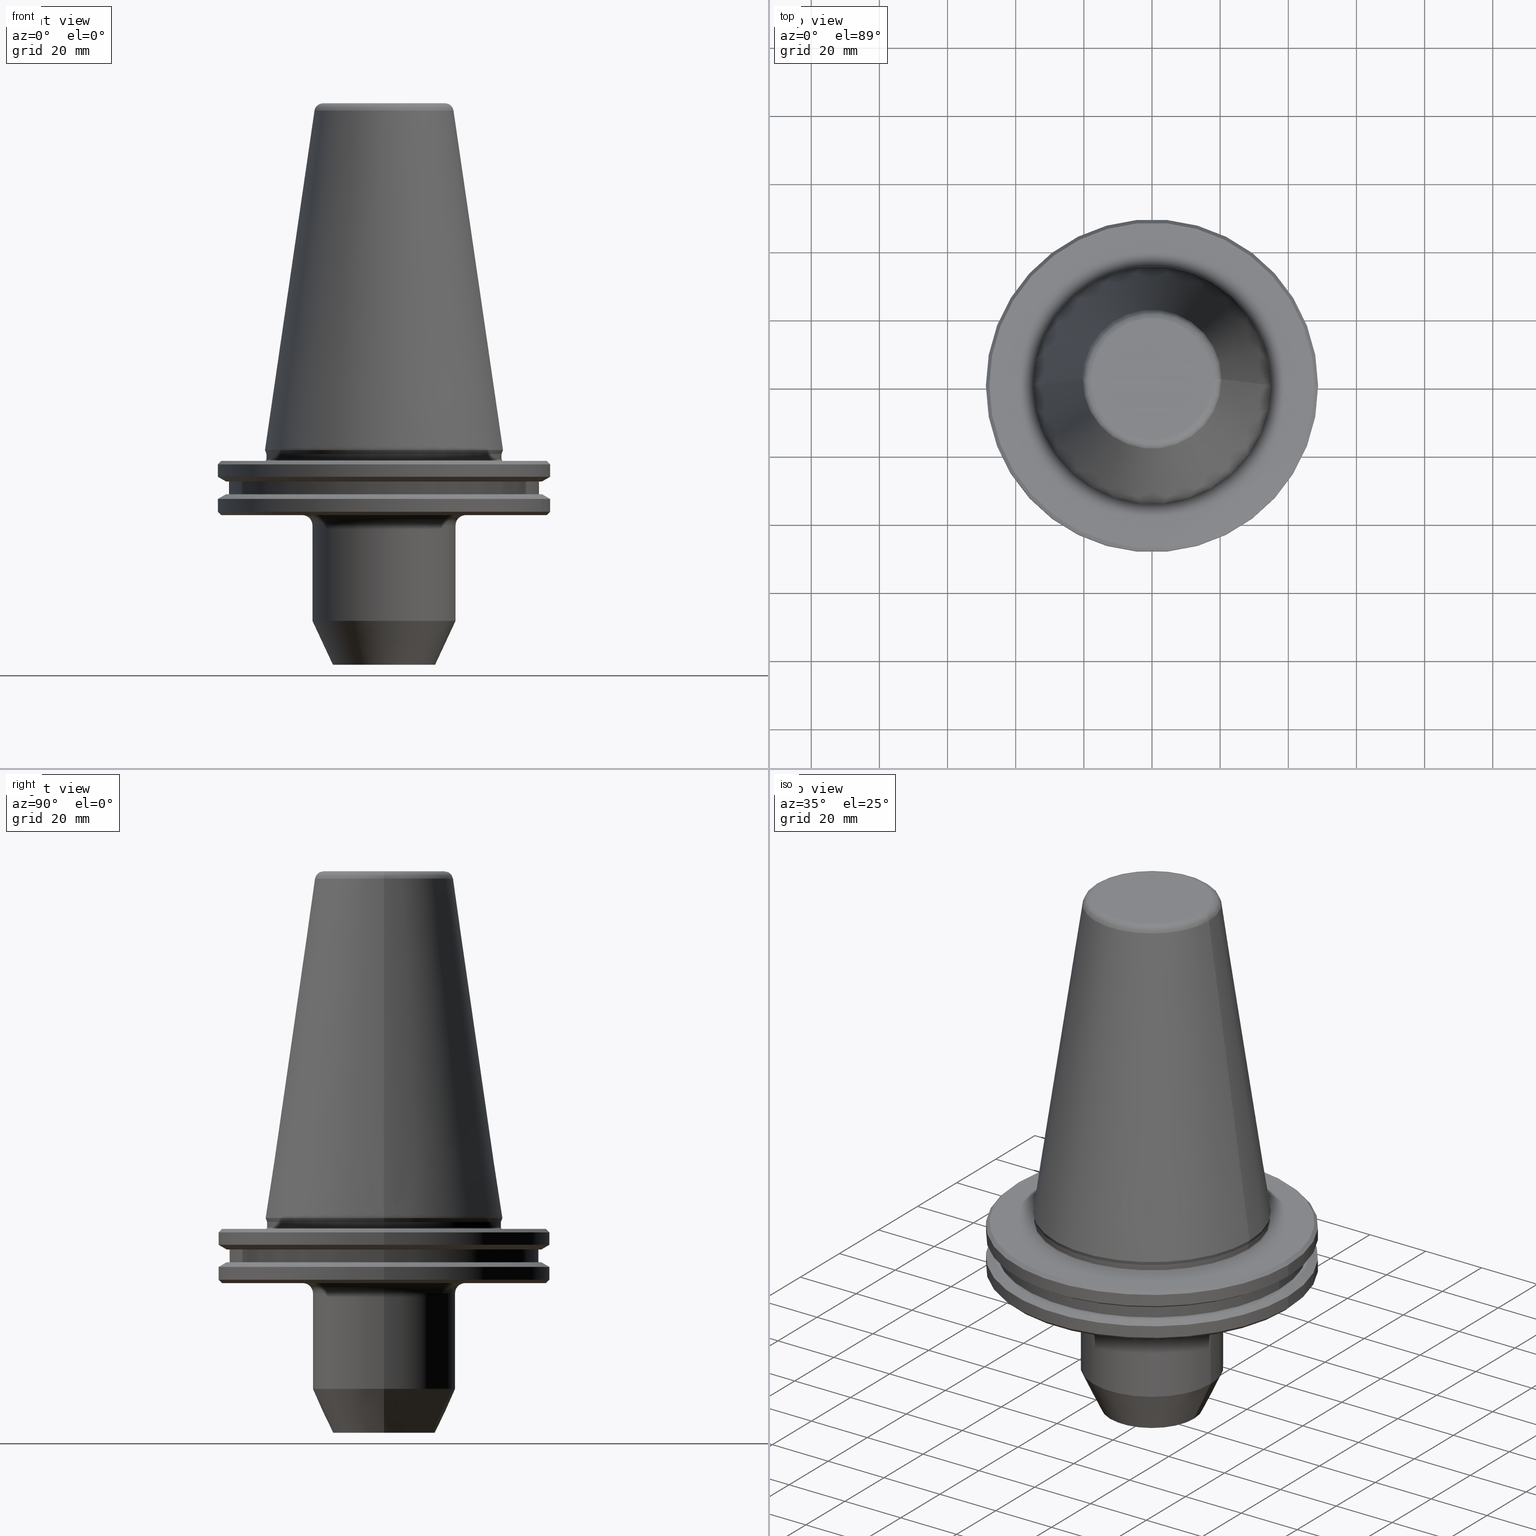
[diagram: canonical four-view strip — front | top / right | iso, engineering-drawing reading convention]
A machine part, canonical four-view strip (front | top / right | iso — engineering-drawing reading convention). The complete STEP part file that produces these views, byte-faithful:
ISO-10303-21;
HEADER;
FILE_DESCRIPTION (( 'STEP AP203' ),
    '1' );
FILE_NAME ('SK50 WE12 063 AD-6.3G15000 SL.STEP',
    '2019-04-30T03:17:17',
    ( '' ),
    ( '' ),
    'SwSTEP 2.0',
    'SolidWorks 2014',
    '' );
FILE_SCHEMA (( 'CONFIG_CONTROL_DESIGN' ));
ENDSEC;

DATA;
#1 = DIRECTION ( 'NONE',  ( 1.000000000000000000, 0.0000000000000000000, 0.0000000000000000000 ) ) ;
#2 = LINE ( 'NONE', #566, #674 ) ;
#3 = EDGE_CURVE ( 'NONE', #246, #422, #505, .T. ) ;
#4 = LINE ( 'NONE', #272, #601 ) ;
#5 = CYLINDRICAL_SURFACE ( 'NONE', #813, 45.50000000000020600 ) ;
#6 = CARTESIAN_POINT ( 'NONE',  ( 0.0000000000000000000, 0.0000000000000000000, -22.09999999999995200 ) ) ;
#7 = DIRECTION ( 'NONE',  ( -0.0000000000000000000, -0.0000000000000000000, 1.000000000000000000 ) ) ;
#8 = ORIENTED_EDGE ( 'NONE', *, *, #474, .F. ) ;
#9 = ORIENTED_EDGE ( 'NONE', *, *, #100, .F. ) ;
#10 = DIRECTION ( 'NONE',  ( 1.000000000000000000, 0.0000000000000000000, 0.0000000000000000000 ) ) ;
#11 = CONICAL_SURFACE ( 'NONE', #388, 48.75000000000018500, 1.047197551196599400 ) ;
#12 = LINE ( 'NONE', #865, #355 ) ;
#13 = CARTESIAN_POINT ( 'NONE',  ( 0.0000000000000000000, 0.0000000000000000000, -2.700000000000091200 ) ) ;
#14 = DIRECTION ( 'NONE',  ( -0.0000000000000000000, -0.0000000000000000000, 1.000000000000000000 ) ) ;
#15 = ORIENTED_EDGE ( 'NONE', *, *, #810, .F. ) ;
#16 = DATE_AND_TIME ( #220, #425 ) ;
#17 = EDGE_CURVE ( 'NONE', #250, #715, #88, .T. ) ;
#18 = EDGE_LOOP ( 'NONE', ( #665, #853, #752, #9 ) ) ;
#19 = VERTEX_POINT ( 'NONE', #743 ) ;
#20 = CARTESIAN_POINT ( 'NONE',  ( -45.50000000000020600, 5.572142936120482400E-015, -9.224999999999926800 ) ) ;
#21 = CARTESIAN_POINT ( 'NONE',  ( 0.0000000000000000000, 0.0000000000000000000, -9.224999999999926800 ) ) ;
#22 = ORIENTED_EDGE ( 'NONE', *, *, #597, .F. ) ;
#23 = EDGE_CURVE ( 'NONE', #246, #843, #477, .T. ) ;
#24 = DIRECTION ( 'NONE',  ( -0.0000000000000000000, -0.0000000000000000000, 1.000000000000000000 ) ) ;
#25 = AXIS2_PLACEMENT_3D ( 'NONE', #504, #415, #889 ) ;
#26 = CARTESIAN_POINT ( 'NONE',  ( -17.92446055806129500, 2.346591844926584100E-015, 101.7500000000000900 ) ) ;
#27 = DIRECTION ( 'NONE',  ( -0.0000000000000000000, -0.0000000000000000000, 1.000000000000000000 ) ) ;
#28 = CONICAL_SURFACE ( 'NONE', #649, 34.92500000000009700, 0.1448138426689039600 ) ;
#29 = CARTESIAN_POINT ( 'NONE',  ( 0.0000000000000000000, 0.0000000000000000000, -4.199999999999870500 ) ) ;
#30 = CIRCLE ( 'NONE', #670, 48.75000000000018500 ) ;
#31 = CONICAL_SURFACE ( 'NONE', #457, 46.37259526419079900, 1.047197551196604700 ) ;
#32 = EDGE_LOOP ( 'NONE', ( #323, #214, #52, #97 ) ) ;
#33 = ORIENTED_EDGE ( 'NONE', *, *, #184, .T. ) ;
#34 = EDGE_CURVE ( 'NONE', #284, #19, #680, .T. ) ;
#35 = FACE_OUTER_BOUND ( 'NONE', #332, .T. ) ;
#36 = AXIS2_PLACEMENT_3D ( 'NONE', #166, #714, #330 ) ;
#37 = CIRCLE ( 'NONE', #369, 48.75000000000018500 ) ;
#38 = ORIENTED_EDGE ( 'NONE', *, *, #100, .T. ) ;
#39 = PERSON_AND_ORGANIZATION ( #54, #781 ) ;
#40 = DIRECTION ( 'NONE',  ( -1.000000000000000000, 0.0000000000000000000, -0.0000000000000000000 ) ) ;
#41 = VERTEX_POINT ( 'NONE', #354 ) ;
#42 = DIRECTION ( 'NONE',  ( -0.0000000000000000000, -0.0000000000000000000, 1.000000000000000000 ) ) ;
#43 = VERTEX_POINT ( 'NONE', #549 ) ;
#44 = AXIS2_PLACEMENT_3D ( 'NONE', #405, #277, #40 ) ;
#45 = DIRECTION ( 'NONE',  ( -1.000000000000000000, 0.0000000000000000000, 0.0000000000000000000 ) ) ;
#46 = EDGE_LOOP ( 'NONE', ( #974, #901 ) ) ;
#47 = PERSON_AND_ORGANIZATION_ROLE ( 'classification_officer' ) ;
#48 = ORIENTED_EDGE ( 'NONE', *, *, #240, .T. ) ;
#49 = EDGE_CURVE ( 'NONE', #422, #480, #708, .T. ) ;
#50 = MECHANICAL_CONTEXT ( 'NONE', #751, 'mechanical' ) ;
#51 = CC_DESIGN_SECURITY_CLASSIFICATION ( #799, ( #546 ) ) ;
#52 = ORIENTED_EDGE ( 'NONE', *, *, #511, .F. ) ;
#53 = ORIENTED_EDGE ( 'NONE', *, *, #108, .F. ) ;
#54 = PERSON ( 'UNSPECIFIED', 'UNSPECIFIED', 'UNSPECIFIED', ('UNSPECIFIED'), ('UNSPECIFIED'), ('UNSPECIFIED') ) ;
#55 = CARTESIAN_POINT ( 'NONE',  ( 48.74999999999995700, 5.970153145843342400E-015, -4.199999999999870500 ) ) ;
#56 = LINE ( 'NONE', #617, #855 ) ;
#57 = ORIENTED_EDGE ( 'NONE', *, *, #654, .F. ) ;
#58 = LINE ( 'NONE', #452, #235 ) ;
#59 = CIRCLE ( 'NONE', #667, 15.00000000000000000 ) ;
#60 = AXIS2_PLACEMENT_3D ( 'NONE', #394, #455, #329 ) ;
#61 = EDGE_CURVE ( 'NONE', #41, #43, #64, .T. ) ;
#62 = CARTESIAN_POINT ( 'NONE',  ( 0.0000000000000000000, 0.0000000000000000000, 101.7499999999999600 ) ) ;
#63 = ADVANCED_FACE ( 'NONE', ( #238 ), #11, .T. ) ;
#64 = LINE ( 'NONE', #432, #863 ) ;
#65 = CARTESIAN_POINT ( 'NONE',  ( 0.0000000000000000000, 0.0000000000000000000, -9.224999999999926800 ) ) ;
#66 = TOROIDAL_SURFACE ( 'NONE', #267, 34.99999999999992200, 0.4999999999999726900 ) ;
#67 = ORIENTED_EDGE ( 'NONE', *, *, #164, .F. ) ;
#68 = PERSON_AND_ORGANIZATION ( #54, #781 ) ;
#69 = EDGE_LOOP ( 'NONE', ( #633, #655, #937, #598 ) ) ;
#70 = DIRECTION ( 'NONE',  ( 1.000000000000000000, 0.0000000000000000000, 0.0000000000000000000 ) ) ;
#71 = DIRECTION ( 'NONE',  ( -1.000000000000000000, 1.224646799147355700E-016, 0.0000000000000000000 ) ) ;
#72 = DIRECTION ( 'NONE',  ( 1.000000000000000000, 0.0000000000000000000, 0.0000000000000000000 ) ) ;
#73 = ORIENTED_EDGE ( 'NONE', *, *, #228, .F. ) ;
#74 = DESIGN_CONTEXT ( 'detailed design', #523, 'design' ) ;
#75 = CARTESIAN_POINT ( 'NONE',  ( 0.0000000000000000000, 0.0000000000000000000, -9.224999999999926800 ) ) ;
#76 = DIRECTION ( 'NONE',  ( -0.0000000000000000000, -0.0000000000000000000, 1.000000000000000000 ) ) ;
#77 = ORIENTED_EDGE ( 'NONE', *, *, #747, .F. ) ;
#78 = EDGE_LOOP ( 'NONE', ( #640, #257, #933, #227 ) ) ;
#79 = EDGE_LOOP ( 'NONE', ( #339, #900 ) ) ;
#80 = PLANE ( 'NONE',  #912 ) ;
#81 = AXIS2_PLACEMENT_3D ( 'NONE', #805, #890, #506 ) ;
#82 = CARTESIAN_POINT ( 'NONE',  ( 0.0000000000000000000, 0.0000000000000000000, -7.852404735807838600 ) ) ;
#83 = FACE_OUTER_BOUND ( 'NONE', #614, .T. ) ;
#84 = ORIENTED_EDGE ( 'NONE', *, *, #914, .T. ) ;
#85 = CARTESIAN_POINT ( 'NONE',  ( 0.0000000000000000000, 0.0000000000000000000, 101.7499999999999600 ) ) ;
#86 = CYLINDRICAL_SURFACE ( 'NONE', #465, 48.74999999999995700 ) ;
#87 = CYLINDRICAL_SURFACE ( 'NONE', #353, 34.49999999999985100 ) ;
#88 = LINE ( 'NONE', #370, #891 ) ;
#89 = DIRECTION ( 'NONE',  ( -0.0000000000000000000, -0.0000000000000000000, 1.000000000000000000 ) ) ;
#90 = TOROIDAL_SURFACE ( 'NONE', #206, 24.00000000000000000, 3.000000000000000000 ) ;
#91 = CALENDAR_DATE ( 2019, 30, 4 ) ;
#92 = ORIENTED_EDGE ( 'NONE', *, *, #758, .T. ) ;
#93 = DIRECTION ( 'NONE',  ( 0.0000000000000000000, -0.0000000000000000000, 1.000000000000000000 ) ) ;
#94 = AXIS2_PLACEMENT_3D ( 'NONE', #689, #14, #171 ) ;
#95 = DIRECTION ( 'NONE',  ( -0.0000000000000000000, -0.0000000000000000000, 1.000000000000000000 ) ) ;
#96 = VERTEX_POINT ( 'NONE', #510 ) ;
#97 = ORIENTED_EDGE ( 'NONE', *, *, #871, .F. ) ;
#98 = DIRECTION ( 'NONE',  ( -0.0000000000000000000, -0.0000000000000000000, 1.000000000000000000 ) ) ;
#99 = AXIS2_PLACEMENT_3D ( 'NONE', #305, #852, #72 ) ;
#100 = EDGE_CURVE ( 'NONE', #41, #574, #423, .T. ) ;
#101 = CARTESIAN_POINT ( 'NONE',  ( 45.50000000000020600, 0.0000000000000000000, -9.224999999999926800 ) ) ;
#102 = CARTESIAN_POINT ( 'NONE',  ( -21.00000000000000000, 2.571758278209441700E-015, -22.09999999999995200 ) ) ;
#103 = CARTESIAN_POINT ( 'NONE',  ( 34.49999999999975100, 0.0000000000000000000, -1.167677903268715700 ) ) ;
#104 = EDGE_LOOP ( 'NONE', ( #362, #471, #15, #624 ) ) ;
#105 = ORIENTED_EDGE ( 'NONE', *, *, #724, .F. ) ;
#106 = EDGE_LOOP ( 'NONE', ( #513, #33, #383, #426 ) ) ;
#107 = DIRECTION ( 'NONE',  ( -0.0000000000000000000, -0.0000000000000000000, 1.000000000000000000 ) ) ;
#108 = EDGE_CURVE ( 'NONE', #483, #480, #216, .T. ) ;
#109 = CARTESIAN_POINT ( 'NONE',  ( -46.37259526419079900, 5.824579090844020300E-015, -9.224999999999926800 ) ) ;
#110 = PRODUCT_RELATED_PRODUCT_CATEGORY ( 'detail', '', ( #160 ) ) ;
#111 = CIRCLE ( 'NONE', #593, 48.75000000000018500 ) ;
#112 = ORIENTED_EDGE ( 'NONE', *, *, #705, .F. ) ;
#113 = ORIENTED_EDGE ( 'NONE', *, *, #914, .F. ) ;
#114 = VECTOR ( 'NONE', #701, 1000.000000000000100 ) ;
#115 = TOROIDAL_SURFACE ( 'NONE', #242, 17.92446055806129500, 2.500000000000083000 ) ;
#116 = DIRECTION ( 'NONE',  ( 0.0000000000000000000, 0.0000000000000000000, -1.000000000000000000 ) ) ;
#117 = AXIS2_PLACEMENT_3D ( 'NONE', #225, #762, #990 ) ;
#118 = DIRECTION ( 'NONE',  ( 0.8660254037844421500, 0.0000000000000000000, 0.4999999999999939500 ) ) ;
#119 = ORIENTED_EDGE ( 'NONE', *, *, #738, .F. ) ;
#120 = EDGE_CURVE ( 'NONE', #185, #96, #630, .T. ) ;
#121 = DIRECTION ( 'NONE',  ( 0.0000000000000000000, 0.0000000000000000000, -1.000000000000000000 ) ) ;
#122 = DATE_AND_TIME ( #328, #537 ) ;
#123 = DIRECTION ( 'NONE',  ( 1.000000000000000000, 0.0000000000000000000, 0.0000000000000000000 ) ) ;
#124 = ORIENTED_EDGE ( 'NONE', *, *, #959, .T. ) ;
#125 = CARTESIAN_POINT ( 'NONE',  ( -47.74999999999973700, 5.847688465928579700E-015, -19.09999999999995200 ) ) ;
#126 = CARTESIAN_POINT ( 'NONE',  ( -48.74999999999995700, 5.970153145843342400E-015, 101.7499999999999600 ) ) ;
#127 = ADVANCED_BREP_SHAPE_REPRESENTATION ( 'SK50 WE12 063 AD-6.3G15000 SL', ( #312, #175 ), #966 ) ;
#128 = ORIENTED_EDGE ( 'NONE', *, *, #860, .T. ) ;
#129 = EDGE_LOOP ( 'NONE', ( #348, #38, #256, #309 ) ) ;
#130 = SECURITY_CLASSIFICATION_LEVEL ( 'unclassified' ) ;
#131 = VECTOR ( 'NONE', #645, 1000.000000000000000 ) ;
#132 = AXIS2_PLACEMENT_3D ( 'NONE', #346, #745, #414 ) ;
#133 = DIRECTION ( 'NONE',  ( 1.000000000000000000, 0.0000000000000000000, 0.0000000000000000000 ) ) ;
#134 = ORIENTED_EDGE ( 'NONE', *, *, #3, .T. ) ;
#135 = CARTESIAN_POINT ( 'NONE',  ( 34.92500000000009700, 0.0000000000000000000, -5.551115123125782700E-014 ) ) ;
#136 = EDGE_CURVE ( 'NONE', #284, #497, #660, .T. ) ;
#137 = DIRECTION ( 'NONE',  ( 1.000000000000000000, 0.0000000000000000000, 0.0000000000000000000 ) ) ;
#138 = ORIENTED_EDGE ( 'NONE', *, *, #251, .T. ) ;
#139 = ADVANCED_FACE ( 'NONE', ( #35 ), #582, .T. ) ;
#140 = DIRECTION ( 'NONE',  ( 1.000000000000000000, 0.0000000000000000000, 0.0000000000000000000 ) ) ;
#141 = DIRECTION ( 'NONE',  ( 1.000000000000000000, 0.0000000000000000000, 0.0000000000000000000 ) ) ;
#142 = ADVANCED_FACE ( 'NONE', ( #808 ), #170, .T. ) ;
#143 = DIRECTION ( 'NONE',  ( -0.0000000000000000000, -0.0000000000000000000, 1.000000000000000000 ) ) ;
#144 = APPROVAL_DATE_TIME ( #350, #337 ) ;
#145 = EDGE_CURVE ( 'NONE', #389, #970, #377, .T. ) ;
#146 = DIRECTION ( 'NONE',  ( -0.0000000000000000000, -0.0000000000000000000, 1.000000000000000000 ) ) ;
#147 = AXIS2_PLACEMENT_3D ( 'NONE', #559, #333, #947 ) ;
#148 = CARTESIAN_POINT ( 'NONE',  ( 0.0000000000000000000, 0.0000000000000000000, -14.34759526419204800 ) ) ;
#149 = ADVANCED_FACE ( 'NONE', ( #790, #987 ), #954, .F. ) ;
#150 = DIRECTION ( 'NONE',  ( 1.000000000000000000, 0.0000000000000000000, 0.0000000000000000000 ) ) ;
#151 = ADVANCED_FACE ( 'NONE', ( #397, #763 ), #861, .F. ) ;
#152 = AXIS2_PLACEMENT_3D ( 'NONE', #985, #997, #814 ) ;
#153 = LINE ( 'NONE', #481, #744 ) ;
#154 = DIRECTION ( 'NONE',  ( 1.000000000000000000, 0.0000000000000000000, 0.0000000000000000000 ) ) ;
#155 = LINE ( 'NONE', #259, #131 ) ;
#156 = ORIENTED_EDGE ( 'NONE', *, *, #371, .T. ) ;
#157 = DIRECTION ( 'NONE',  ( -0.0000000000000000000, -0.0000000000000000000, 1.000000000000000000 ) ) ;
#158 = EDGE_CURVE ( 'NONE', #867, #389, #194, .T. ) ;
#159 = CARTESIAN_POINT ( 'NONE',  ( 48.75000000000018500, 5.970153145843369200E-015, -14.34759526419204800 ) ) ;
#160 = PRODUCT ( 'SK50 WE12 063 AD-6.3G15000 SL', 'SK50 WE12 063 AD-6.3G15000 SL', '', ( #50 ) ) ;
#161 = ORIENTED_EDGE ( 'NONE', *, *, #352, .F. ) ;
#162 = AXIS2_PLACEMENT_3D ( 'NONE', #168, #846, #150 ) ;
#163 = APPROVAL_PERSON_ORGANIZATION ( #368, #337, #969 ) ;
#164 = EDGE_CURVE ( 'NONE', #886, #955, #608, .T. ) ;
#165 = CARTESIAN_POINT ( 'NONE',  ( 47.74999999999973700, 0.0000000000000000000, -19.09999999999995200 ) ) ;
#166 = CARTESIAN_POINT ( 'NONE',  ( 0.0000000000000000000, 0.0000000000000000000, -1.167677903268715700 ) ) ;
#167 = CYLINDRICAL_SURFACE ( 'NONE', #81, 48.75000000000018500 ) ;
#168 = CARTESIAN_POINT ( 'NONE',  ( 0.0000000000000000000, 0.0000000000000000000, 158.1180504483445200 ) ) ;
#169 = CARTESIAN_POINT ( 'NONE',  ( 21.00000000000000000, 0.0000000000000000000, -22.09999999999995200 ) ) ;
#170 = CONICAL_SURFACE ( 'NONE', #538, 47.74999999999973700, 0.7853981633974482800 ) ;
#171 = DIRECTION ( 'NONE',  ( 1.000000000000000000, 0.0000000000000000000, 0.0000000000000000000 ) ) ;
#172 = LINE ( 'NONE', #280, #766 ) ;
#173 = EDGE_CURVE ( 'NONE', #734, #213, #732, .T. ) ;
#174 = CARTESIAN_POINT ( 'NONE',  ( -34.99999999999992200, 4.286263797015727000E-015, -3.199999999999966900 ) ) ;
#175 = AXIS2_PLACEMENT_3D ( 'NONE', #532, #365, #133 ) ;
#176 = ORIENTED_EDGE ( 'NONE', *, *, #707, .F. ) ;
#177 = CARTESIAN_POINT ( 'NONE',  ( 0.0000000000000000000, 0.0000000000000000000, -3.199999999999869600 ) ) ;
#178 = DIRECTION ( 'NONE',  ( -0.0000000000000000000, -0.0000000000000000000, 1.000000000000000000 ) ) ;
#179 = DIRECTION ( 'NONE',  ( 0.0000000000000000000, -0.0000000000000000000, 1.000000000000000000 ) ) ;
#180 = VERTEX_POINT ( 'NONE', #877 ) ;
#181 = DIRECTION ( 'NONE',  ( 0.0000000000000000000, 0.0000000000000000000, -1.000000000000000000 ) ) ;
#182 = AXIS2_PLACEMENT_3D ( 'NONE', #254, #400, #71 ) ;
#183 = CARTESIAN_POINT ( 'NONE',  ( 0.0000000000000000000, 0.0000000000000000000, -19.09999999999995200 ) ) ;
#184 = EDGE_CURVE ( 'NONE', #993, #867, #484, .T. ) ;
#185 = VERTEX_POINT ( 'NONE', #381 ) ;
#186 = DIRECTION ( 'NONE',  ( 1.000000000000000000, 0.0000000000000000000, 0.0000000000000000000 ) ) ;
#187 = EDGE_LOOP ( 'NONE', ( #581, #635, #237, #586 ) ) ;
#188 = DIRECTION ( 'NONE',  ( 1.000000000000000000, 0.0000000000000000000, 0.0000000000000000000 ) ) ;
#189 = LINE ( 'NONE', #669, #558 ) ;
#190 = SHAPE_DEFINITION_REPRESENTATION ( #516, #127 ) ;
#191 = ORIENTED_EDGE ( 'NONE', *, *, #577, .T. ) ;
#192 = AXIS2_PLACEMENT_3D ( 'NONE', #148, #878, #490 ) ;
#193 = DIRECTION ( 'NONE',  ( -0.0000000000000000000, -0.0000000000000000000, 1.000000000000000000 ) ) ;
#194 = LINE ( 'NONE', #926, #964 ) ;
#195 = CIRCLE ( 'NONE', #787, 48.74999999999995700 ) ;
#196 = DIRECTION ( 'NONE',  ( 1.000000000000000000, 0.0000000000000000000, 0.0000000000000000000 ) ) ;
#197 = ORIENTED_EDGE ( 'NONE', *, *, #231, .T. ) ;
#198 = AXIS2_PLACEMENT_3D ( 'NONE', #994, #76, #515 ) ;
#199 = EDGE_CURVE ( 'NONE', #992, #458, #319, .T. ) ;
#200 = VERTEX_POINT ( 'NONE', #913 ) ;
#201 = PERSON_AND_ORGANIZATION_ROLE ( 'design_supplier' ) ;
#202 = APPLICATION_PROTOCOL_DEFINITION ( 'international standard', 'config_control_design', 1994, #751 ) ;
#203 = ADVANCED_FACE ( 'NONE', ( #528 ), #962, .F. ) ;
#204 = CARTESIAN_POINT ( 'NONE',  ( 0.0000000000000000000, 0.0000000000000000000, -19.09999999999995200 ) ) ;
#205 = LINE ( 'NONE', #310, #600 ) ;
#206 = AXIS2_PLACEMENT_3D ( 'NONE', #6, #864, #324 ) ;
#207 = CARTESIAN_POINT ( 'NONE',  ( 0.0000000000000000000, 0.0000000000000000000, -2.700000000000091200 ) ) ;
#208 = ADVANCED_FACE ( 'NONE', ( #909 ), #86, .T. ) ;
#209 = VECTOR ( 'NONE', #596, 1000.000000000000000 ) ;
#210 = CONICAL_SURFACE ( 'NONE', #561, 15.00000000000000000, 0.4363323129985836000 ) ;
#211 = DIRECTION ( 'NONE',  ( -0.0000000000000000000, -0.0000000000000000000, 1.000000000000000000 ) ) ;
#212 = EDGE_CURVE ( 'NONE', #200, #868, #702, .T. ) ;
#213 = VERTEX_POINT ( 'NONE', #618 ) ;
#214 = ORIENTED_EDGE ( 'NONE', *, *, #592, .T. ) ;
#215 = ADVANCED_FACE ( 'NONE', ( #887 ), #263, .T. ) ;
#216 = LINE ( 'NONE', #464, #838 ) ;
#217 = DIRECTION ( 'NONE',  ( 1.000000000000000000, 0.0000000000000000000, 0.0000000000000000000 ) ) ;
#218 = CIRCLE ( 'NONE', #578, 20.39829252569114000 ) ;
#219 = CLOSED_SHELL ( 'NONE', ( #832, #447, #215, #606, #755, #824, #844, #982, #366, #208, #915, #530, #908, #372, #142, #149, #203, #221, #302, #63, #151, #976, #920, #534, #760, #139, #543, #684, #296, #441, #540, #839, #599, #924, #591, #678 ) ) ;
#220 = CALENDAR_DATE ( 2019, 30, 4 ) ;
#221 = ADVANCED_FACE ( 'NONE', ( #501 ), #444, .T. ) ;
#222 = ORIENTED_EDGE ( 'NONE', *, *, #23, .F. ) ;
#223 = ORIENTED_EDGE ( 'NONE', *, *, #352, .T. ) ;
#224 = EDGE_LOOP ( 'NONE', ( #427, #690, #191, #668 ) ) ;
#225 = CARTESIAN_POINT ( 'NONE',  ( 0.0000000000000000000, 0.0000000000000000000, -12.97500000000006900 ) ) ;
#226 = CC_DESIGN_PERSON_AND_ORGANIZATION_ASSIGNMENT ( #576, #590, ( #160 ) ) ;
#227 = ORIENTED_EDGE ( 'NONE', *, *, #777, .F. ) ;
#228 = EDGE_CURVE ( 'NONE', #422, #246, #858, .T. ) ;
#229 = DIRECTION ( 'NONE',  ( -0.4226182617407005500, 5.175581015019672300E-017, 0.9063077870366493800 ) ) ;
#230 = AXIS2_PLACEMENT_3D ( 'NONE', #880, #952, #411 ) ;
#231 = EDGE_CURVE ( 'NONE', #512, #483, #656, .T. ) ;
#232 = CARTESIAN_POINT ( 'NONE',  ( 34.99999999999992200, 0.0000000000000000000, -3.199999999999966900 ) ) ;
#233 = FACE_OUTER_BOUND ( 'NONE', #695, .T. ) ;
#234 = EDGE_CURVE ( 'NONE', #213, #734, #676, .T. ) ;
#235 = VECTOR ( 'NONE', #211, 1000.000000000000000 ) ;
#236 = FACE_OUTER_BOUND ( 'NONE', #106, .T. ) ;
#237 = ORIENTED_EDGE ( 'NONE', *, *, #371, .F. ) ;
#238 = FACE_OUTER_BOUND ( 'NONE', #589, .T. ) ;
#239 = DIRECTION ( 'NONE',  ( 1.000000000000000000, 0.0000000000000000000, 0.0000000000000000000 ) ) ;
#240 = EDGE_CURVE ( 'NONE', #970, #955, #58, .T. ) ;
#241 = FACE_OUTER_BOUND ( 'NONE', #616, .T. ) ;
#242 = AXIS2_PLACEMENT_3D ( 'NONE', #870, #98, #335 ) ;
#243 = ORIENTED_EDGE ( 'NONE', *, *, #3, .F. ) ;
#244 = DATE_AND_TIME ( #456, #664 ) ;
#245 = EDGE_LOOP ( 'NONE', ( #882, #48, #789, #463 ) ) ;
#246 = VERTEX_POINT ( 'NONE', #295 ) ;
#247 = CARTESIAN_POINT ( 'NONE',  ( 0.0000000000000000000, 0.0000000000000000000, -3.199999999999869600 ) ) ;
#248 = ORIENTED_EDGE ( 'NONE', *, *, #49, .F. ) ;
#249 = DIRECTION ( 'NONE',  ( -0.0000000000000000000, -0.0000000000000000000, 1.000000000000000000 ) ) ;
#250 = VERTEX_POINT ( 'NONE', #981 ) ;
#251 = EDGE_CURVE ( 'NONE', #19, #266, #30, .T. ) ;
#252 = DIRECTION ( 'NONE',  ( -0.0000000000000000000, -0.0000000000000000000, 1.000000000000000000 ) ) ;
#253 = DIRECTION ( 'NONE',  ( 0.0000000000000000000, -1.000000000000000000, 0.0000000000000000000 ) ) ;
#254 = CARTESIAN_POINT ( 'NONE',  ( -34.99999999999992200, 4.286263797015727000E-015, -2.700000000000091200 ) ) ;
#255 = DIRECTION ( 'NONE',  ( 1.000000000000000000, 0.0000000000000000000, 0.0000000000000000000 ) ) ;
#256 = ORIENTED_EDGE ( 'NONE', *, *, #291, .T. ) ;
#257 = ORIENTED_EDGE ( 'NONE', *, *, #768, .F. ) ;
#258 = DIRECTION ( 'NONE',  ( -1.000000000000000000, 1.224646799147353500E-016, 0.0000000000000000000 ) ) ;
#259 = CARTESIAN_POINT ( 'NONE',  ( 21.00000000000000000, 0.0000000000000000000, 158.1180504483445200 ) ) ;
#260 = CYLINDRICAL_SURFACE ( 'NONE', #753, 45.50000000000020600 ) ;
#261 = ORIENTED_EDGE ( 'NONE', *, *, #164, .T. ) ;
#262 = CARTESIAN_POINT ( 'NONE',  ( 0.0000000000000000000, 0.0000000000000000000, -22.09999999999995200 ) ) ;
#263 = CYLINDRICAL_SURFACE ( 'NONE', #518, 21.00000000000000000 ) ;
#264 = FACE_OUTER_BOUND ( 'NONE', #531, .T. ) ;
#265 = EDGE_CURVE ( 'NONE', #847, #468, #472, .T. ) ;
#266 = VERTEX_POINT ( 'NONE', #605 ) ;
#267 = AXIS2_PLACEMENT_3D ( 'NONE', #488, #89, #782 ) ;
#268 = EDGE_CURVE ( 'NONE', #646, #494, #829, .T. ) ;
#269 = CARTESIAN_POINT ( 'NONE',  ( 0.0000000000000000000, 0.0000000000000000000, -12.97500000000006900 ) ) ;
#270 = EDGE_CURVE ( 'NONE', #512, #843, #622, .T. ) ;
#271 = VECTOR ( 'NONE', #42, 1000.000000000000000 ) ;
#272 = CARTESIAN_POINT ( 'NONE',  ( 34.49999999999975100, 0.0000000000000000000, -1.167677903268715700 ) ) ;
#273 = FACE_OUTER_BOUND ( 'NONE', #78, .T. ) ;
#274 = EDGE_LOOP ( 'NONE', ( #156, #469, #113, #848 ) ) ;
#275 = PERSON_AND_ORGANIZATION ( #54, #781 ) ;
#276 = EDGE_LOOP ( 'NONE', ( #629, #736, #509, #128 ) ) ;
#277 = DIRECTION ( 'NONE',  ( 0.0000000000000000000, 0.0000000000000000000, -1.000000000000000000 ) ) ;
#278 = DIRECTION ( 'NONE',  ( -0.3420201433257963300, 4.188538737678555300E-017, 0.9396926207858620200 ) ) ;
#279 = PRODUCT_DEFINITION ( 'UNKNOWN', '', #546, #74 ) ;
#280 = CARTESIAN_POINT ( 'NONE',  ( 34.92500000000009700, 4.277078946022142700E-015, -5.551115123125782700E-014 ) ) ;
#281 = APPROVAL_ROLE ( '' ) ;
#282 = VERTEX_POINT ( 'NONE', #135 ) ;
#283 = EDGE_LOOP ( 'NONE', ( #124, #817, #569, #292 ) ) ;
#284 = VERTEX_POINT ( 'NONE', #823 ) ;
#285 = DIRECTION ( 'NONE',  ( -0.0000000000000000000, -0.0000000000000000000, 1.000000000000000000 ) ) ;
#286 = AXIS2_PLACEMENT_3D ( 'NONE', #466, #897, #123 ) ;
#287 = EDGE_CURVE ( 'NONE', #459, #180, #806, .T. ) ;
#288 = AXIS2_PLACEMENT_3D ( 'NONE', #651, #27, #186 ) ;
#289 =( LENGTH_UNIT ( ) NAMED_UNIT ( * ) SI_UNIT ( .MILLI., .METRE. ) );
#290 = CONICAL_SURFACE ( 'NONE', #387, 34.49999999999975100, 0.3490658503990017300 ) ;
#291 = EDGE_CURVE ( 'NONE', #574, #282, #4, .T. ) ;
#292 = ORIENTED_EDGE ( 'NONE', *, *, #158, .F. ) ;
#293 = FACE_OUTER_BOUND ( 'NONE', #363, .T. ) ;
#294 = CIRCLE ( 'NONE', #306, 34.92500000000009700 ) ;
#295 = CARTESIAN_POINT ( 'NONE',  ( 48.74999999999995700, 0.0000000000000000000, -7.852404735807838600 ) ) ;
#296 = ADVANCED_FACE ( 'NONE', ( #418 ), #785, .T. ) ;
#297 = EDGE_CURVE ( 'NONE', #96, #185, #980, .T. ) ;
#298 = DIRECTION ( 'NONE',  ( 1.000000000000000000, 0.0000000000000000000, 0.0000000000000000000 ) ) ;
#299 = VECTOR ( 'NONE', #815, 1000.000000000000000 ) ;
#300 = CYLINDRICAL_SURFACE ( 'NONE', #162, 21.00000000000000000 ) ;
#301 = CARTESIAN_POINT ( 'NONE',  ( 0.0000000000000000000, 0.0000000000000000000, -63.00000000000000000 ) ) ;
#302 = ADVANCED_FACE ( 'NONE', ( #293 ), #167, .T. ) ;
#303 = LOCAL_TIME ( 8, 47, 17.00000000000000000, #508 ) ;
#304 = ORIENTED_EDGE ( 'NONE', *, *, #511, .T. ) ;
#305 = CARTESIAN_POINT ( 'NONE',  ( 0.0000000000000000000, 0.0000000000000000000, -9.224999999999926800 ) ) ;
#306 = AXIS2_PLACEMENT_3D ( 'NONE', #797, #252, #945 ) ;
#307 = ORIENTED_EDGE ( 'NONE', *, *, #228, .T. ) ;
#308 = CARTESIAN_POINT ( 'NONE',  ( 0.0000000000000000000, 0.0000000000000000000, -4.199999999999870500 ) ) ;
#309 = ORIENTED_EDGE ( 'NONE', *, *, #860, .F. ) ;
#310 = CARTESIAN_POINT ( 'NONE',  ( 34.49999999999985100, 0.0000000000000000000, 101.7499999999999600 ) ) ;
#311 = AXIS2_PLACEMENT_3D ( 'NONE', #938, #854, #428 ) ;
#312 = MANIFOLD_SOLID_BREP ( 'Fillet1', #219 ) ;
#313 = ORIENTED_EDGE ( 'NONE', *, *, #871, .T. ) ;
#314 = ORIENTED_EDGE ( 'NONE', *, *, #756, .F. ) ;
#315 = PLANE ( 'NONE',  #1000 ) ;
#316 = FACE_OUTER_BOUND ( 'NONE', #276, .T. ) ;
#317 = EDGE_LOOP ( 'NONE', ( #134, #338, #176, #222 ) ) ;
#318 = ORIENTED_EDGE ( 'NONE', *, *, #439, .F. ) ;
#319 = CIRCLE ( 'NONE', #198, 34.49999999999995000 ) ;
#320 = CIRCLE ( 'NONE', #94, 17.92446055806129500 ) ;
#321 = EDGE_LOOP ( 'NONE', ( #821, #811, #604, #261 ) ) ;
#322 = CARTESIAN_POINT ( 'NONE',  ( 0.0000000000000000000, 0.0000000000000000000, -3.199999999999869600 ) ) ;
#323 = ORIENTED_EDGE ( 'NONE', *, *, #710, .T. ) ;
#324 = DIRECTION ( 'NONE',  ( 1.000000000000000000, 0.0000000000000000000, 0.0000000000000000000 ) ) ;
#325 = AXIS2_PLACEMENT_3D ( 'NONE', #801, #644, #727 ) ;
#326 = CARTESIAN_POINT ( 'NONE',  ( 0.0000000000000000000, 0.0000000000000000000, -4.199999999999870500 ) ) ;
#327 = EDGE_CURVE ( 'NONE', #970, #389, #580, .T. ) ;
#328 = CALENDAR_DATE ( 2019, 30, 4 ) ;
#329 = DIRECTION ( 'NONE',  ( 1.000000000000000000, 0.0000000000000000000, 0.0000000000000000000 ) ) ;
#330 = DIRECTION ( 'NONE',  ( 1.000000000000000000, 0.0000000000000000000, 0.0000000000000000000 ) ) ;
#331 = DIRECTION ( 'NONE',  ( -0.0000000000000000000, -0.0000000000000000000, 1.000000000000000000 ) ) ;
#332 = EDGE_LOOP ( 'NONE', ( #688, #314, #625, #729 ) ) ;
#333 = DIRECTION ( 'NONE',  ( -0.0000000000000000000, -0.0000000000000000000, 1.000000000000000000 ) ) ;
#334 = DIRECTION ( 'NONE',  ( -0.0000000000000000000, -0.0000000000000000000, 1.000000000000000000 ) ) ;
#335 = DIRECTION ( 'NONE',  ( 1.000000000000000000, 0.0000000000000000000, 0.0000000000000000000 ) ) ;
#336 = EDGE_CURVE ( 'NONE', #213, #246, #373, .T. ) ;
#337 = APPROVAL ( #820, 'UNSPECIFIED' ) ;
#338 = ORIENTED_EDGE ( 'NONE', *, *, #49, .T. ) ;
#339 = ORIENTED_EDGE ( 'NONE', *, *, #120, .F. ) ;
#340 = CARTESIAN_POINT ( 'NONE',  ( 0.0000000000000000000, 0.0000000000000000000, -1.167677903268715700 ) ) ;
#341 = DIRECTION ( 'NONE',  ( 0.0000000000000000000, 0.0000000000000000000, -1.000000000000000000 ) ) ;
#342 = DIRECTION ( 'NONE',  ( 1.000000000000000000, 0.0000000000000000000, 0.0000000000000000000 ) ) ;
#343 = CYLINDRICAL_SURFACE ( 'NONE', #288, 48.75000000000018500 ) ;
#344 = ORIENTED_EDGE ( 'NONE', *, *, #136, .F. ) ;
#345 = AXIS2_PLACEMENT_3D ( 'NONE', #876, #726, #255 ) ;
#346 = CARTESIAN_POINT ( 'NONE',  ( 0.0000000000000000000, 0.0000000000000000000, -1.167677903268715700 ) ) ;
#347 = AXIS2_PLACEMENT_3D ( 'NONE', #904, #285, #196 ) ;
#348 = ORIENTED_EDGE ( 'NONE', *, *, #61, .F. ) ;
#349 = DIRECTION ( 'NONE',  ( -0.8660254037844421500, 1.060575238724911200E-016, 0.4999999999999939500 ) ) ;
#350 = DATE_AND_TIME ( #556, #759 ) ;
#351 = CARTESIAN_POINT ( 'NONE',  ( 0.0000000000000000000, 0.0000000000000000000, 101.7499999999999600 ) ) ;
#352 = EDGE_CURVE ( 'NONE', #734, #422, #189, .T. ) ;
#353 = AXIS2_PLACEMENT_3D ( 'NONE', #793, #718, #1 ) ;
#354 = CARTESIAN_POINT ( 'NONE',  ( -34.49999999999975100, 4.225031457058343700E-015, -1.167677903268715700 ) ) ;
#355 = VECTOR ( 'NONE', #788, 1000.000000000000000 ) ;
#356 = AXIS2_PLACEMENT_3D ( 'NONE', #958, #827, #934 ) ;
#357 = DIRECTION ( 'NONE',  ( 1.000000000000000000, 0.0000000000000000000, 0.0000000000000000000 ) ) ;
#358 = CIRCLE ( 'NONE', #230, 2.999999999999999100 ) ;
#359 = PERSON_AND_ORGANIZATION_ROLE ( 'creator' ) ;
#360 = ORIENTED_EDGE ( 'NONE', *, *, #270, .T. ) ;
#361 = DIRECTION ( 'NONE',  ( 1.000000000000000000, 0.0000000000000000000, 0.0000000000000000000 ) ) ;
#362 = ORIENTED_EDGE ( 'NONE', *, *, #120, .T. ) ;
#363 = EDGE_LOOP ( 'NONE', ( #856, #138, #313, #666 ) ) ;
#364 = EDGE_LOOP ( 'NONE', ( #716, #881, #571, #454 ) ) ;
#365 = DIRECTION ( 'NONE',  ( 0.0000000000000000000, 0.0000000000000000000, 1.000000000000000000 ) ) ;
#366 = ADVANCED_FACE ( 'NONE', ( #393 ), #750, .T. ) ;
#367 = CARTESIAN_POINT ( 'NONE',  ( 0.0000000000000000000, 0.0000000000000000000, -1.167677903268715700 ) ) ;
#368 = PERSON_AND_ORGANIZATION ( #54, #781 ) ;
#369 = AXIS2_PLACEMENT_3D ( 'NONE', #570, #24, #493 ) ;
#370 = CARTESIAN_POINT ( 'NONE',  ( -48.75000000000018500, 0.0000000000000000000, -14.34759526419204800 ) ) ;
#371 = EDGE_CURVE ( 'NONE', #574, #41, #951, .T. ) ;
#372 = ADVANCED_FACE ( 'NONE', ( #567 ), #343, .T. ) ;
#373 = LINE ( 'NONE', #957, #961 ) ;
#374 = DIRECTION ( 'NONE',  ( 1.000000000000000000, 0.0000000000000000000, 0.0000000000000000000 ) ) ;
#375 = DIRECTION ( 'NONE',  ( 1.000000000000000000, 0.0000000000000000000, 0.0000000000000000000 ) ) ;
#376 = ORIENTED_EDGE ( 'NONE', *, *, #959, .F. ) ;
#377 = CIRCLE ( 'NONE', #773, 21.00000000000000000 ) ;
#378 = DIRECTION ( 'NONE',  ( 1.000000000000000000, 0.0000000000000000000, 0.0000000000000000000 ) ) ;
#379 = CARTESIAN_POINT ( 'NONE',  ( 0.0000000000000000000, 0.0000000000000000000, -19.09999999999995200 ) ) ;
#380 = CYLINDRICAL_SURFACE ( 'NONE', #893, 48.74999999999995700 ) ;
#381 = CARTESIAN_POINT ( 'NONE',  ( 45.50000000000020600, 0.0000000000000000000, -12.97500000000006900 ) ) ;
#382 = CC_DESIGN_APPROVAL ( #337, ( #279 ) ) ;
#383 = ORIENTED_EDGE ( 'NONE', *, *, #158, .T. ) ;
#384 = DIRECTION ( 'NONE',  ( -0.0000000000000000000, -0.0000000000000000000, 1.000000000000000000 ) ) ;
#385 = CARTESIAN_POINT ( 'NONE',  ( 45.50000000000020600, 0.0000000000000000000, 101.7499999999999600 ) ) ;
#386 = ORIENTED_EDGE ( 'NONE', *, *, #1001, .T. ) ;
#387 = AXIS2_PLACEMENT_3D ( 'NONE', #340, #798, #361 ) ;
#388 = AXIS2_PLACEMENT_3D ( 'NONE', #746, #818, #521 ) ;
#389 = VERTEX_POINT ( 'NONE', #500 ) ;
#390 = DIRECTION ( 'NONE',  ( 1.000000000000000000, 0.0000000000000000000, 0.0000000000000000000 ) ) ;
#391 = FACE_OUTER_BOUND ( 'NONE', #321, .T. ) ;
#392 = DIRECTION ( 'NONE',  ( 0.1443082234293891500, 1.767266039134425100E-017, -0.9895327870518760800 ) ) ;
#393 = FACE_OUTER_BOUND ( 'NONE', #700, .T. ) ;
#394 = CARTESIAN_POINT ( 'NONE',  ( 0.0000000000000000000, 0.0000000000000000000, 99.25000000000000000 ) ) ;
#395 = DIRECTION ( 'NONE',  ( -0.0000000000000000000, -0.0000000000000000000, 1.000000000000000000 ) ) ;
#396 = EDGE_LOOP ( 'NONE', ( #612, #932 ) ) ;
#397 = FACE_BOUND ( 'NONE', #79, .T. ) ;
#398 = DIRECTION ( 'NONE',  ( -1.000000000000000000, 0.0000000000000000000, -0.0000000000000000000 ) ) ;
#399 = AXIS2_PLACEMENT_3D ( 'NONE', #643, #568, #874 ) ;
#400 = DIRECTION ( 'NONE',  ( 1.224646799147353200E-016, 1.000000000000000000, 0.0000000000000000000 ) ) ;
#401 = CIRCLE ( 'NONE', #944, 21.00000000000000000 ) ;
#402 = AXIS2_PLACEMENT_3D ( 'NONE', #308, #585, #45 ) ;
#403 = ORIENTED_EDGE ( 'NONE', *, *, #983, .T. ) ;
#404 = CARTESIAN_POINT ( 'NONE',  ( -48.74999999999995700, 5.970153145843342400E-015, -4.199999999999870500 ) ) ;
#405 = CARTESIAN_POINT ( 'NONE',  ( 0.0000000000000000000, 46.37259526419124000, -12.97500000000006900 ) ) ;
#406 = EDGE_LOOP ( 'NONE', ( #842, #796, #922, #658 ) ) ;
#407 = AXIS2_PLACEMENT_3D ( 'NONE', #82, #542, #375 ) ;
#408 = CARTESIAN_POINT ( 'NONE',  ( 0.0000000000000000000, 0.0000000000000000000, -9.224999999999926800 ) ) ;
#409 = DIRECTION ( 'NONE',  ( 1.000000000000000000, 0.0000000000000000000, 0.0000000000000000000 ) ) ;
#410 = CARTESIAN_POINT ( 'NONE',  ( 34.99999999999992200, 0.0000000000000000000, -2.700000000000091200 ) ) ;
#411 = DIRECTION ( 'NONE',  ( 0.0000000000000000000, 0.0000000000000000000, -1.000000000000000000 ) ) ;
#412 = CARTESIAN_POINT ( 'NONE',  ( 0.0000000000000000000, 0.0000000000000000000, 101.7499999999999600 ) ) ;
#413 = CARTESIAN_POINT ( 'NONE',  ( -17.92446055806129500, 2.195113324887274600E-015, 99.25000000000000000 ) ) ;
#414 = DIRECTION ( 'NONE',  ( 1.000000000000000000, 0.0000000000000000000, 0.0000000000000000000 ) ) ;
#415 = DIRECTION ( 'NONE',  ( -0.0000000000000000000, -0.0000000000000000000, 1.000000000000000000 ) ) ;
#416 = VECTOR ( 'NONE', #769, 1000.000000000000000 ) ;
#417 = EDGE_CURVE ( 'NONE', #389, #886, #155, .T. ) ;
#418 = FACE_OUTER_BOUND ( 'NONE', #18, .T. ) ;
#419 = FACE_OUTER_BOUND ( 'NONE', #364, .T. ) ;
#420 = AXIS2_PLACEMENT_3D ( 'NONE', #410, #253, #341 ) ;
#421 = ORIENTED_EDGE ( 'NONE', *, *, #17, .T. ) ;
#422 = VERTEX_POINT ( 'NONE', #731 ) ;
#423 = CIRCLE ( 'NONE', #440, 34.49999999999975100 ) ;
#424 = CIRCLE ( 'NONE', #536, 2.500000000000082200 ) ;
#425 = LOCAL_TIME ( 8, 47, 17.00000000000000000, #634 ) ;
#426 = ORIENTED_EDGE ( 'NONE', *, *, #327, .F. ) ;
#427 = ORIENTED_EDGE ( 'NONE', *, *, #816, .F. ) ;
#428 = DIRECTION ( 'NONE',  ( 1.000000000000000000, 0.0000000000000000000, 0.0000000000000000000 ) ) ;
#429 = EDGE_CURVE ( 'NONE', #494, #886, #358, .T. ) ;
#430 = DATE_TIME_ROLE ( 'classification_date' ) ;
#431 = CC_DESIGN_PERSON_AND_ORGANIZATION_ASSIGNMENT ( #942, #359, ( #279 ) ) ;
#432 = CARTESIAN_POINT ( 'NONE',  ( -34.49999999999975100, 4.225031457058338200E-015, -1.167677903268715700 ) ) ;
#433 = ORIENTED_EDGE ( 'NONE', *, *, #707, .T. ) ;
#434 = APPLICATION_PROTOCOL_DEFINITION ( 'international standard', 'config_control_design', 1994, #523 ) ;
#435 = EDGE_CURVE ( 'NONE', #458, #448, #931, .T. ) ;
#436 = VERTEX_POINT ( 'NONE', #26 ) ;
#437 = AXIS2_PLACEMENT_3D ( 'NONE', #720, #795, #342 ) ;
#438 = DIRECTION ( 'NONE',  ( -0.0000000000000000000, -0.0000000000000000000, 1.000000000000000000 ) ) ;
#439 = EDGE_CURVE ( 'NONE', #436, #180, #728, .T. ) ;
#440 = AXIS2_PLACEMENT_3D ( 'NONE', #367, #193, #378 ) ;
#441 = ADVANCED_FACE ( 'NONE', ( #524 ), #290, .T. ) ;
#442 = CONICAL_SURFACE ( 'NONE', #704, 46.37259526419079900, 1.047197551196604700 ) ;
#443 = DIRECTION ( 'NONE',  ( 1.224646799147353200E-016, 1.000000000000000000, 0.0000000000000000000 ) ) ;
#444 = CONICAL_SURFACE ( 'NONE', #311, 47.74999999999973700, 0.7853981633974482800 ) ;
#445 = FACE_BOUND ( 'NONE', #486, .T. ) ;
#446 = DIRECTION ( 'NONE',  ( -0.0000000000000000000, -0.0000000000000000000, 1.000000000000000000 ) ) ;
#447 = ADVANCED_FACE ( 'NONE', ( #548 ), #885, .T. ) ;
#448 = VERTEX_POINT ( 'NONE', #174 ) ;
#449 = VECTOR ( 'NONE', #698, 1000.000000000000000 ) ;
#450 = DIRECTION ( 'NONE',  ( -0.0000000000000000000, -0.0000000000000000000, 1.000000000000000000 ) ) ;
#451 = FACE_OUTER_BOUND ( 'NONE', #69, .T. ) ;
#452 = CARTESIAN_POINT ( 'NONE',  ( -21.00000000000000000, 2.571758278209441700E-015, 158.1180504483445200 ) ) ;
#453 = EDGE_LOOP ( 'NONE', ( #921, #807, #461, #802 ) ) ;
#454 = ORIENTED_EDGE ( 'NONE', *, *, #719, .F. ) ;
#455 = DIRECTION ( 'NONE',  ( -0.0000000000000000000, -0.0000000000000000000, 1.000000000000000000 ) ) ;
#456 = CALENDAR_DATE ( 2019, 30, 4 ) ;
#457 = AXIS2_PLACEMENT_3D ( 'NONE', #21, #107, #409 ) ;
#458 = VERTEX_POINT ( 'NONE', #637 ) ;
#459 = VERTEX_POINT ( 'NONE', #487 ) ;
#460 = CARTESIAN_POINT ( 'NONE',  ( 0.0000000000000000000, 0.0000000000000000000, -50.13295847694268300 ) ) ;
#461 = ORIENTED_EDGE ( 'NONE', *, *, #654, .T. ) ;
#462 = DIRECTION ( 'NONE',  ( -1.000000000000000000, 0.0000000000000000000, 0.0000000000000000000 ) ) ;
#463 = ORIENTED_EDGE ( 'NONE', *, *, #417, .F. ) ;
#464 = CARTESIAN_POINT ( 'NONE',  ( -48.74999999999995700, 0.0000000000000000000, -4.199999999999870500 ) ) ;
#465 = AXIS2_PLACEMENT_3D ( 'NONE', #849, #157, #390 ) ;
#466 = CARTESIAN_POINT ( 'NONE',  ( 0.0000000000000000000, 47.74999999999973700, -19.09999999999995200 ) ) ;
#467 = CARTESIAN_POINT ( 'NONE',  ( 0.0000000000000000000, 0.0000000000000000000, -63.00000000000000000 ) ) ;
#468 = VERTEX_POINT ( 'NONE', #101 ) ;
#469 = ORIENTED_EDGE ( 'NONE', *, *, #61, .T. ) ;
#470 = FACE_OUTER_BOUND ( 'NONE', #800, .T. ) ;
#471 = ORIENTED_EDGE ( 'NONE', *, *, #816, .T. ) ;
#472 = CIRCLE ( 'NONE', #723, 45.50000000000020600 ) ;
#473 = VECTOR ( 'NONE', #249, 1000.000000000000000 ) ;
#474 = EDGE_CURVE ( 'NONE', #448, #757, #905, .T. ) ;
#475 = CARTESIAN_POINT ( 'NONE',  ( -20.39829252569114000, 0.0000000000000000000, 99.61077055857353500 ) ) ;
#476 = AXIS2_PLACEMENT_3D ( 'NONE', #177, #639, #495 ) ;
#477 = LINE ( 'NONE', #514, #271 ) ;
#478 = CARTESIAN_POINT ( 'NONE',  ( 48.74999999999995700, 0.0000000000000000000, -4.199999999999870500 ) ) ;
#479 = VECTOR ( 'NONE', #626, 1000.000000000000000 ) ;
#480 = VERTEX_POINT ( 'NONE', #404 ) ;
#481 = CARTESIAN_POINT ( 'NONE',  ( -45.50000000000020600, 5.572142936120482400E-015, 101.7499999999999600 ) ) ;
#482 = PERSON_AND_ORGANIZATION ( #54, #781 ) ;
#483 = VERTEX_POINT ( 'NONE', #564 ) ;
#484 = CIRCLE ( 'NONE', #152, 15.00000000000000000 ) ;
#485 = DIRECTION ( 'NONE',  ( -0.0000000000000000000, -0.0000000000000000000, 1.000000000000000000 ) ) ;
#486 = EDGE_LOOP ( 'NONE', ( #906, #697 ) ) ;
#487 = CARTESIAN_POINT ( 'NONE',  ( 20.39829252569114000, 3.387574655494023600E-015, 99.61077055857353500 ) ) ;
#488 = CARTESIAN_POINT ( 'NONE',  ( 0.0000000000000000000, 0.0000000000000000000, -2.700000000000091200 ) ) ;
#489 = CC_DESIGN_DATE_AND_TIME_ASSIGNMENT ( #122, #902, ( #279 ) ) ;
#490 = DIRECTION ( 'NONE',  ( -1.000000000000000000, 0.0000000000000000000, 0.0000000000000000000 ) ) ;
#491 = ORIENTED_EDGE ( 'NONE', *, *, #268, .F. ) ;
#492 = ORIENTED_EDGE ( 'NONE', *, *, #173, .T. ) ;
#493 = DIRECTION ( 'NONE',  ( 1.000000000000000000, 0.0000000000000000000, 0.0000000000000000000 ) ) ;
#494 = VERTEX_POINT ( 'NONE', #948 ) ;
#495 = DIRECTION ( 'NONE',  ( 1.000000000000000000, 0.0000000000000000000, 0.0000000000000000000 ) ) ;
#496 = FACE_OUTER_BOUND ( 'NONE', #104, .T. ) ;
#497 = VERTEX_POINT ( 'NONE', #872 ) ;
#498 = AXIS2_PLACEMENT_3D ( 'NONE', #247, #334, #792 ) ;
#499 = EDGE_CURVE ( 'NONE', #458, #992, #699, .T. ) ;
#500 = CARTESIAN_POINT ( 'NONE',  ( 21.00000000000000000, 0.0000000000000000000, -50.13295847694268300 ) ) ;
#501 = FACE_OUTER_BOUND ( 'NONE', #453, .T. ) ;
#502 = FACE_OUTER_BOUND ( 'NONE', #187, .T. ) ;
#503 = AXIS2_PLACEMENT_3D ( 'NONE', #692, #572, #940 ) ;
#504 = CARTESIAN_POINT ( 'NONE',  ( 0.0000000000000000000, 0.0000000000000000000, -50.13295847694268300 ) ) ;
#505 = CIRCLE ( 'NONE', #347, 48.74999999999995700 ) ;
#506 = DIRECTION ( 'NONE',  ( 1.000000000000000000, 0.0000000000000000000, 0.0000000000000000000 ) ) ;
#507 = LINE ( 'NONE', #165, #892 ) ;
#508 = COORDINATED_UNIVERSAL_TIME_OFFSET ( 5, 30, .AHEAD. ) ;
#509 = ORIENTED_EDGE ( 'NONE', *, *, #803, .T. ) ;
#510 = CARTESIAN_POINT ( 'NONE',  ( -45.50000000000020600, 5.572142936120482400E-015, -12.97500000000006900 ) ) ;
#511 = EDGE_CURVE ( 'NONE', #868, #715, #111, .T. ) ;
#512 = VERTEX_POINT ( 'NONE', #560 ) ;
#513 = ORIENTED_EDGE ( 'NONE', *, *, #553, .F. ) ;
#514 = CARTESIAN_POINT ( 'NONE',  ( 48.74999999999995700, 0.0000000000000000000, 101.7499999999999600 ) ) ;
#515 = DIRECTION ( 'NONE',  ( 1.000000000000000000, 0.0000000000000000000, 0.0000000000000000000 ) ) ;
#516 = PRODUCT_DEFINITION_SHAPE ( 'NONE', 'NONE',  #279 ) ;
#517 = DIRECTION ( 'NONE',  ( -0.8660254037844393700, 0.0000000000000000000, -0.4999999999999985000 ) ) ;
#518 = AXIS2_PLACEMENT_3D ( 'NONE', #550, #776, #963 ) ;
#519 = EDGE_LOOP ( 'NONE', ( #835, #223, #243, #672 ) ) ;
#520 = ORIENTED_EDGE ( 'NONE', *, *, #995, .F. ) ;
#521 = DIRECTION ( 'NONE',  ( -1.000000000000000000, 0.0000000000000000000, 0.0000000000000000000 ) ) ;
#522 = UNCERTAINTY_MEASURE_WITH_UNIT (LENGTH_MEASURE( 1.000000000000000100E-005 ), #289, 'distance_accuracy_value', 'NONE');
#523 = APPLICATION_CONTEXT ( 'configuration controlled 3d designs of mechanical parts and assemblies' ) ;
#524 = FACE_OUTER_BOUND ( 'NONE', #129, .T. ) ;
#525 = DIRECTION ( 'NONE',  ( -0.0000000000000000000, -0.0000000000000000000, 1.000000000000000000 ) ) ;
#526 = ORIENTED_EDGE ( 'NONE', *, *, #756, .T. ) ;
#527 = ORIENTED_EDGE ( 'NONE', *, *, #184, .F. ) ;
#528 = FACE_OUTER_BOUND ( 'NONE', #780, .T. ) ;
#529 = CONICAL_SURFACE ( 'NONE', #36, 34.49999999999975100, 0.3490658503990017300 ) ;
#530 = ADVANCED_FACE ( 'NONE', ( #496 ), #260, .T. ) ;
#531 = EDGE_LOOP ( 'NONE', ( #22, #730, #304, #928 ) ) ;
#532 = CARTESIAN_POINT ( 'NONE',  ( 0.0000000000000000000, 0.0000000000000000000, 0.0000000000000000000 ) ) ;
#533 = EDGE_LOOP ( 'NONE', ( #119, #92, #722, #318 ) ) ;
#534 = ADVANCED_FACE ( 'NONE', ( #83 ), #442, .T. ) ;
#535 = CARTESIAN_POINT ( 'NONE',  ( -48.75000000000018500, 5.970153145843369200E-015, -14.34759526419204800 ) ) ;
#536 = AXIS2_PLACEMENT_3D ( 'NONE', #413, #884, #258 ) ;
#537 = LOCAL_TIME ( 8, 47, 17.00000000000000000, #739 ) ;
#538 = AXIS2_PLACEMENT_3D ( 'NONE', #183, #146, #154 ) ;
#539 = CARTESIAN_POINT ( 'NONE',  ( 0.0000000000000000000, 46.37259526419079900, -9.224999999999926800 ) ) ;
#540 = ADVANCED_FACE ( 'NONE', ( #316 ), #28, .T. ) ;
#541 = ORIENTED_EDGE ( 'NONE', *, *, #705, .T. ) ;
#542 = DIRECTION ( 'NONE',  ( -0.0000000000000000000, -0.0000000000000000000, 1.000000000000000000 ) ) ;
#543 = ADVANCED_FACE ( 'NONE', ( #653, #470 ), #80, .F. ) ;
#544 = FACE_OUTER_BOUND ( 'NONE', #533, .T. ) ;
#545 = DIRECTION ( 'NONE',  ( -0.0000000000000000000, -0.0000000000000000000, 1.000000000000000000 ) ) ;
#546 = PRODUCT_DEFINITION_FORMATION_WITH_SPECIFIED_SOURCE ( 'ANY', '', #160, .NOT_KNOWN. ) ;
#547 = DIRECTION ( 'NONE',  ( -0.0000000000000000000, -0.0000000000000000000, 1.000000000000000000 ) ) ;
#548 = FACE_OUTER_BOUND ( 'NONE', #283, .T. ) ;
#549 = CARTESIAN_POINT ( 'NONE',  ( -34.92500000000009700, 4.277078946022142700E-015, -5.551115123125782700E-014 ) ) ;
#550 = CARTESIAN_POINT ( 'NONE',  ( 0.0000000000000000000, 0.0000000000000000000, 158.1180504483445200 ) ) ;
#551 = AXIS2_PLACEMENT_3D ( 'NONE', #13, #485, #641 ) ;
#552 = ORIENTED_EDGE ( 'NONE', *, *, #34, .T. ) ;
#553 = EDGE_CURVE ( 'NONE', #993, #970, #56, .T. ) ;
#554 = AXIS2_PLACEMENT_3D ( 'NONE', #584, #927, #573 ) ;
#555 = CARTESIAN_POINT ( 'NONE',  ( 0.0000000000000000000, 0.0000000000000000000, 99.61077055857353500 ) ) ;
#556 = CALENDAR_DATE ( 2019, 30, 4 ) ;
#557 = DIRECTION ( 'NONE',  ( 0.7071067811865474600, 0.0000000000000000000, 0.7071067811865475700 ) ) ;
#558 = VECTOR ( 'NONE', #349, 1000.000000000000000 ) ;
#559 = CARTESIAN_POINT ( 'NONE',  ( 0.0000000000000000000, 0.0000000000000000000, -22.09999999999995200 ) ) ;
#560 = CARTESIAN_POINT ( 'NONE',  ( 47.74999999999995700, 5.908920805885974100E-015, -3.199999999999869600 ) ) ;
#561 = AXIS2_PLACEMENT_3D ( 'NONE', #301, #837, #374 ) ;
#562 = TOROIDAL_SURFACE ( 'NONE', #60, 17.92446055806129500, 2.500000000000083000 ) ;
#563 = CIRCLE ( 'NONE', #984, 45.50000000000020600 ) ;
#564 = CARTESIAN_POINT ( 'NONE',  ( -47.74999999999995700, 0.0000000000000000000, -3.199999999999869600 ) ) ;
#565 = AXIS2_PLACEMENT_3D ( 'NONE', #647, #143, #70 ) ;
#566 = CARTESIAN_POINT ( 'NONE',  ( -48.75000000000018500, 5.970153145843369200E-015, 101.7499999999999600 ) ) ;
#567 = FACE_OUTER_BOUND ( 'NONE', #32, .T. ) ;
#568 = DIRECTION ( 'NONE',  ( -0.0000000000000000000, -0.0000000000000000000, 1.000000000000000000 ) ) ;
#569 = ORIENTED_EDGE ( 'NONE', *, *, #145, .F. ) ;
#570 = CARTESIAN_POINT ( 'NONE',  ( 0.0000000000000000000, 0.0000000000000000000, -18.09999999999950400 ) ) ;
#571 = ORIENTED_EDGE ( 'NONE', *, *, #474, .T. ) ;
#572 = DIRECTION ( 'NONE',  ( -0.0000000000000000000, -0.0000000000000000000, 1.000000000000000000 ) ) ;
#573 = DIRECTION ( 'NONE',  ( 1.000000000000000000, 0.0000000000000000000, 0.0000000000000000000 ) ) ;
#574 = VERTEX_POINT ( 'NONE', #103 ) ;
#575 = ORIENTED_EDGE ( 'NONE', *, *, #429, .F. ) ;
#576 = PERSON_AND_ORGANIZATION ( #54, #781 ) ;
#577 = EDGE_CURVE ( 'NONE', #185, #468, #620, .T. ) ;
#578 = AXIS2_PLACEMENT_3D ( 'NONE', #936, #998, #899 ) ;
#579 = DIRECTION ( 'NONE',  ( -0.0000000000000000000, -0.0000000000000000000, 1.000000000000000000 ) ) ;
#580 = CIRCLE ( 'NONE', #25, 21.00000000000000000 ) ;
#581 = ORIENTED_EDGE ( 'NONE', *, *, #199, .T. ) ;
#582 = CONICAL_SURFACE ( 'NONE', #402, 48.74999999999995700, 0.7853981633974482800 ) ;
#583 = CIRCLE ( 'NONE', #836, 24.00000000000000000 ) ;
#584 = CARTESIAN_POINT ( 'NONE',  ( 0.0000000000000000000, 0.0000000000000000000, -19.09999999999995200 ) ) ;
#585 = DIRECTION ( 'NONE',  ( 0.0000000000000000000, 0.0000000000000000000, -1.000000000000000000 ) ) ;
#586 = ORIENTED_EDGE ( 'NONE', *, *, #595, .F. ) ;
#587 = APPROVAL_STATUS ( 'not_yet_approved' ) ;
#588 = APPROVAL ( #748, 'UNSPECIFIED' ) ;
#589 = EDGE_LOOP ( 'NONE', ( #794, #112, #421, #386 ) ) ;
#590 = PERSON_AND_ORGANIZATION_ROLE ( 'design_owner' ) ;
#591 = ADVANCED_FACE ( 'NONE', ( #233 ), #315, .F. ) ;
#592 = EDGE_CURVE ( 'NONE', #19, #715, #2, .T. ) ;
#593 = AXIS2_PLACEMENT_3D ( 'NONE', #725, #693, #681 ) ;
#594 = CARTESIAN_POINT ( 'NONE',  ( 0.0000000000000000000, 0.0000000000000000000, -14.34759526419204800 ) ) ;
#595 = EDGE_CURVE ( 'NONE', #992, #574, #205, .T. ) ;
#596 = DIRECTION ( 'NONE',  ( 0.7071067811865474600, 8.659560562354931600E-017, -0.7071067811865475700 ) ) ;
#597 = EDGE_CURVE ( 'NONE', #200, #250, #804, .T. ) ;
#598 = ORIENTED_EDGE ( 'NONE', *, *, #724, .T. ) ;
#599 = ADVANCED_FACE ( 'NONE', ( #391 ), #300, .T. ) ;
#600 = VECTOR ( 'NONE', #850, 1000.000000000000000 ) ;
#601 = VECTOR ( 'NONE', #894, 999.9999999999998900 ) ;
#602 = CIRCLE ( 'NONE', #873, 47.74999999999973700 ) ;
#603 = CARTESIAN_POINT ( 'NONE',  ( -21.00000000000000000, 2.571758278209441700E-015, -50.13295847694268300 ) ) ;
#604 = ORIENTED_EDGE ( 'NONE', *, *, #417, .T. ) ;
#605 = CARTESIAN_POINT ( 'NONE',  ( 48.75000000000018500, 0.0000000000000000000, -18.09999999999950400 ) ) ;
#606 = ADVANCED_FACE ( 'NONE', ( #826 ), #562, .T. ) ;
#607 = ORIENTED_EDGE ( 'NONE', *, *, #23, .T. ) ;
#608 = CIRCLE ( 'NONE', #991, 21.00000000000000000 ) ;
#609 = CARTESIAN_POINT ( 'NONE',  ( 0.0000000000000000000, 0.0000000000000000000, -12.97500000000006900 ) ) ;
#610 = CIRCLE ( 'NONE', #740, 20.39829252569114000 ) ;
#611 = AXIS2_PLACEMENT_3D ( 'NONE', #539, #179, #761 ) ;
#612 = ORIENTED_EDGE ( 'NONE', *, *, #768, .T. ) ;
#613 = ORIENTED_EDGE ( 'NONE', *, *, #772, .F. ) ;
#614 = EDGE_LOOP ( 'NONE', ( #161, #492, #986, #73 ) ) ;
#615 = AXIS2_PLACEMENT_3D ( 'NONE', #65, #686, #923 ) ;
#616 = EDGE_LOOP ( 'NONE', ( #77, #663, #84, #774 ) ) ;
#617 = CARTESIAN_POINT ( 'NONE',  ( -15.00000000000000000, 1.836970198721029600E-015, -63.00000000000000000 ) ) ;
#618 = CARTESIAN_POINT ( 'NONE',  ( 46.37259526419079900, 0.0000000000000000000, -9.224999999999926800 ) ) ;
#619 = DIRECTION ( 'NONE',  ( -0.0000000000000000000, -0.0000000000000000000, 1.000000000000000000 ) ) ;
#620 = LINE ( 'NONE', #385, #416 ) ;
#621 = CARTESIAN_POINT ( 'NONE',  ( 0.0000000000000000000, 0.0000000000000000000, -19.09999999999995200 ) ) ;
#622 = LINE ( 'NONE', #55, #209 ) ;
#623 = FACE_OUTER_BOUND ( 'NONE', #224, .T. ) ;
#624 = ORIENTED_EDGE ( 'NONE', *, *, #577, .F. ) ;
#625 = ORIENTED_EDGE ( 'NONE', *, *, #108, .T. ) ;
#626 = DIRECTION ( 'NONE',  ( -0.0000000000000000000, -0.0000000000000000000, 1.000000000000000000 ) ) ;
#627 = AXIS2_PLACEMENT_3D ( 'NONE', #828, #181, #648 ) ;
#628 = DIRECTION ( 'NONE',  ( 0.0000000000000000000, 0.0000000000000000000, -1.000000000000000000 ) ) ;
#629 = ORIENTED_EDGE ( 'NONE', *, *, #784, .F. ) ;
#630 = CIRCLE ( 'NONE', #503, 45.50000000000020600 ) ;
#631 = CARTESIAN_POINT ( 'NONE',  ( 0.0000000000000000000, 0.0000000000000000000, -9.224999999999926800 ) ) ;
#632 = CIRCLE ( 'NONE', #476, 34.99999999999992200 ) ;
#633 = ORIENTED_EDGE ( 'NONE', *, *, #435, .F. ) ;
#634 = COORDINATED_UNIVERSAL_TIME_OFFSET ( 5, 30, .AHEAD. ) ;
#635 = ORIENTED_EDGE ( 'NONE', *, *, #650, .T. ) ;
#636 = EDGE_LOOP ( 'NONE', ( #999, #552, #833, #57 ) ) ;
#637 = CARTESIAN_POINT ( 'NONE',  ( -34.49999999999995000, 4.255647627037044800E-015, -2.700000000000091200 ) ) ;
#638 = CARTESIAN_POINT ( 'NONE',  ( 48.75000000000018500, 0.0000000000000000000, -14.34759526419204800 ) ) ;
#639 = DIRECTION ( 'NONE',  ( -0.0000000000000000000, -0.0000000000000000000, 1.000000000000000000 ) ) ;
#640 = ORIENTED_EDGE ( 'NONE', *, *, #983, .F. ) ;
#641 = DIRECTION ( 'NONE',  ( 1.000000000000000000, 0.0000000000000000000, 0.0000000000000000000 ) ) ;
#642 = CC_DESIGN_APPROVAL ( #588, ( #546 ) ) ;
#643 = CARTESIAN_POINT ( 'NONE',  ( 0.0000000000000000000, 0.0000000000000000000, -5.551115123125782700E-014 ) ) ;
#644 = DIRECTION ( 'NONE',  ( -0.0000000000000000000, -0.0000000000000000000, 1.000000000000000000 ) ) ;
#645 = DIRECTION ( 'NONE',  ( -0.0000000000000000000, -0.0000000000000000000, 1.000000000000000000 ) ) ;
#646 = VERTEX_POINT ( 'NONE', #786 ) ;
#647 = CARTESIAN_POINT ( 'NONE',  ( 0.0000000000000000000, 0.0000000000000000000, -3.199999999999869600 ) ) ;
#648 = DIRECTION ( 'NONE',  ( -1.000000000000000000, 0.0000000000000000000, 0.0000000000000000000 ) ) ;
#649 = AXIS2_PLACEMENT_3D ( 'NONE', #883, #770, #462 ) ;
#650 = EDGE_CURVE ( 'NONE', #458, #41, #685, .T. ) ;
#651 = CARTESIAN_POINT ( 'NONE',  ( 0.0000000000000000000, 0.0000000000000000000, 101.7499999999999600 ) ) ;
#652 = DIRECTION ( 'NONE',  ( 1.000000000000000000, 0.0000000000000000000, 0.0000000000000000000 ) ) ;
#653 = FACE_BOUND ( 'NONE', #875, .T. ) ;
#654 = EDGE_CURVE ( 'NONE', #497, #266, #507, .T. ) ;
#655 = ORIENTED_EDGE ( 'NONE', *, *, #199, .F. ) ;
#656 = CIRCLE ( 'NONE', #565, 47.74999999999995700 ) ;
#657 = CONICAL_SURFACE ( 'NONE', #192, 48.75000000000018500, 1.047197551196599400 ) ;
#658 = ORIENTED_EDGE ( 'NONE', *, *, #287, .F. ) ;
#659 = DIRECTION ( 'NONE',  ( 0.0000000000000000000, -1.000000000000000000, 0.0000000000000000000 ) ) ;
#660 = CIRCLE ( 'NONE', #554, 47.74999999999973700 ) ;
#661 = CIRCLE ( 'NONE', #117, 46.37259526419124000 ) ;
#662 = DIRECTION ( 'NONE',  ( -0.7071067811865474600, 0.0000000000000000000, -0.7071067811865475700 ) ) ;
#663 = ORIENTED_EDGE ( 'NONE', *, *, #784, .T. ) ;
#664 = LOCAL_TIME ( 8, 47, 17.00000000000000000, #869 ) ;
#665 = ORIENTED_EDGE ( 'NONE', *, *, #650, .F. ) ;
#666 = ORIENTED_EDGE ( 'NONE', *, *, #1001, .F. ) ;
#667 = AXIS2_PLACEMENT_3D ( 'NONE', #979, #917, #298 ) ;
#668 = ORIENTED_EDGE ( 'NONE', *, *, #265, .F. ) ;
#669 = CARTESIAN_POINT ( 'NONE',  ( -46.37259526419079900, 5.679005035844697300E-015, -9.224999999999926800 ) ) ;
#670 = AXIS2_PLACEMENT_3D ( 'NONE', #978, #384, #140 ) ;
#671 = PERSON_AND_ORGANIZATION_ROLE ( 'creator' ) ;
#672 = ORIENTED_EDGE ( 'NONE', *, *, #336, .F. ) ;
#673 = VERTEX_POINT ( 'NONE', #475 ) ;
#674 = VECTOR ( 'NONE', #545, 1000.000000000000000 ) ;
#675 = ORIENTED_EDGE ( 'NONE', *, *, #231, .F. ) ;
#676 = CIRCLE ( 'NONE', #615, 46.37259526419079900 ) ;
#677 = LINE ( 'NONE', #712, #473 ) ;
#678 = ADVANCED_FACE ( 'NONE', ( #273 ), #90, .F. ) ;
#679 = CARTESIAN_POINT ( 'NONE',  ( 34.49999999999995000, 0.0000000000000000000, -2.700000000000091200 ) ) ;
#680 = LINE ( 'NONE', #125, #299 ) ;
#681 = DIRECTION ( 'NONE',  ( 1.000000000000000000, 0.0000000000000000000, 0.0000000000000000000 ) ) ;
#682 = AXIS2_PLACEMENT_3D ( 'NONE', #322, #619, #939 ) ;
#683 = DIRECTION ( 'NONE',  ( -0.0000000000000000000, -0.0000000000000000000, 1.000000000000000000 ) ) ;
#684 = ADVANCED_FACE ( 'NONE', ( #451 ), #66, .F. ) ;
#685 = LINE ( 'NONE', #711, #479 ) ;
#686 = DIRECTION ( 'NONE',  ( -0.0000000000000000000, -0.0000000000000000000, 1.000000000000000000 ) ) ;
#687 = APPROVAL_DATE_TIME ( #895, #588 ) ;
#688 = ORIENTED_EDGE ( 'NONE', *, *, #270, .F. ) ;
#689 = CARTESIAN_POINT ( 'NONE',  ( 0.0000000000000000000, 0.0000000000000000000, 101.7500000000000900 ) ) ;
#690 = ORIENTED_EDGE ( 'NONE', *, *, #297, .T. ) ;
#691 = DIRECTION ( 'NONE',  ( 1.000000000000000000, 0.0000000000000000000, 0.0000000000000000000 ) ) ;
#692 = CARTESIAN_POINT ( 'NONE',  ( 0.0000000000000000000, 0.0000000000000000000, -12.97500000000006900 ) ) ;
#693 = DIRECTION ( 'NONE',  ( -0.0000000000000000000, -0.0000000000000000000, 1.000000000000000000 ) ) ;
#694 = CC_DESIGN_PERSON_AND_ORGANIZATION_ASSIGNMENT ( #482, #671, ( #546 ) ) ;
#695 = EDGE_LOOP ( 'NONE', ( #376, #527 ) ) ;
#696 = EDGE_LOOP ( 'NONE', ( #491, #403, #67, #575 ) ) ;
#697 = ORIENTED_EDGE ( 'NONE', *, *, #265, .T. ) ;
#698 = DIRECTION ( 'NONE',  ( -0.0000000000000000000, -0.0000000000000000000, 1.000000000000000000 ) ) ;
#699 = CIRCLE ( 'NONE', #551, 34.49999999999995000 ) ;
#700 = EDGE_LOOP ( 'NONE', ( #675, #360, #433, #53 ) ) ;
#701 = DIRECTION ( 'NONE',  ( 0.8660254037844393700, 1.060575238724907800E-016, -0.4999999999999985000 ) ) ;
#702 = LINE ( 'NONE', #159, #114 ) ;
#703 = FACE_OUTER_BOUND ( 'NONE', #46, .T. ) ;
#704 = AXIS2_PLACEMENT_3D ( 'NONE', #408, #331, #929 ) ;
#705 = EDGE_CURVE ( 'NONE', #250, #200, #661, .T. ) ;
#706 = DIRECTION ( 'NONE',  ( 1.000000000000000000, 0.0000000000000000000, 0.0000000000000000000 ) ) ;
#707 = EDGE_CURVE ( 'NONE', #843, #480, #866, .T. ) ;
#708 = LINE ( 'NONE', #126, #449 ) ;
#709 = DIRECTION ( 'NONE',  ( 1.000000000000000000, 0.0000000000000000000, 0.0000000000000000000 ) ) ;
#710 = EDGE_CURVE ( 'NONE', #266, #19, #37, .T. ) ;
#711 = CARTESIAN_POINT ( 'NONE',  ( -34.49999999999985100, 4.225031457058350000E-015, 101.7499999999999600 ) ) ;
#712 = CARTESIAN_POINT ( 'NONE',  ( 48.75000000000018500, 0.0000000000000000000, 101.7499999999999600 ) ) ;
#713 = APPROVAL_PERSON_ORGANIZATION ( #918, #588, #281 ) ;
#714 = DIRECTION ( 'NONE',  ( -0.0000000000000000000, -0.0000000000000000000, 1.000000000000000000 ) ) ;
#715 = VERTEX_POINT ( 'NONE', #535 ) ;
#716 = ORIENTED_EDGE ( 'NONE', *, *, #499, .F. ) ;
#717 = AXIS2_PLACEMENT_3D ( 'NONE', #207, #683, #141 ) ;
#718 = DIRECTION ( 'NONE',  ( -0.0000000000000000000, -0.0000000000000000000, 1.000000000000000000 ) ) ;
#719 = EDGE_CURVE ( 'NONE', #992, #757, #840, .T. ) ;
#720 = CARTESIAN_POINT ( 'NONE',  ( 0.0000000000000000000, 0.0000000000000000000, -63.00000000000000000 ) ) ;
#721 = EDGE_LOOP ( 'NONE', ( #248, #307, #607, #613 ) ) ;
#722 = ORIENTED_EDGE ( 'NONE', *, *, #287, .T. ) ;
#723 = AXIS2_PLACEMENT_3D ( 'NONE', #75, #911, #652 ) ;
#724 = EDGE_CURVE ( 'NONE', #757, #448, #632, .T. ) ;
#725 = CARTESIAN_POINT ( 'NONE',  ( 0.0000000000000000000, 0.0000000000000000000, -14.34759526419204800 ) ) ;
#726 = DIRECTION ( 'NONE',  ( -0.0000000000000000000, -0.0000000000000000000, 1.000000000000000000 ) ) ;
#727 = DIRECTION ( 'NONE',  ( 1.000000000000000000, 0.0000000000000000000, 0.0000000000000000000 ) ) ;
#728 = CIRCLE ( 'NONE', #345, 17.92446055806129500 ) ;
#729 = ORIENTED_EDGE ( 'NONE', *, *, #772, .T. ) ;
#730 = ORIENTED_EDGE ( 'NONE', *, *, #212, .T. ) ;
#731 = CARTESIAN_POINT ( 'NONE',  ( -48.74999999999995700, 5.970153145843342400E-015, -7.852404735807838600 ) ) ;
#732 = CIRCLE ( 'NONE', #99, 46.37259526419079900 ) ;
#733 = CIRCLE ( 'NONE', #765, 2.999999999999999100 ) ;
#734 = VERTEX_POINT ( 'NONE', #109 ) ;
#735 = DIRECTION ( 'NONE',  ( -1.000000000000000000, 0.0000000000000000000, 0.0000000000000000000 ) ) ;
#736 = ORIENTED_EDGE ( 'NONE', *, *, #758, .F. ) ;
#737 = DIRECTION ( 'NONE',  ( -0.0000000000000000000, -0.0000000000000000000, 1.000000000000000000 ) ) ;
#738 = EDGE_CURVE ( 'NONE', #673, #436, #424, .T. ) ;
#739 = COORDINATED_UNIVERSAL_TIME_OFFSET ( 5, 30, .AHEAD. ) ;
#740 = AXIS2_PLACEMENT_3D ( 'NONE', #555, #857, #709 ) ;
#741 = CARTESIAN_POINT ( 'NONE',  ( 17.92446055806129500, 0.0000000000000000000, 99.25000000000000000 ) ) ;
#742 = DIRECTION ( 'NONE',  ( 0.4226182617407005500, 0.0000000000000000000, 0.9063077870366493800 ) ) ;
#743 = CARTESIAN_POINT ( 'NONE',  ( -48.75000000000018500, 5.970153145843369200E-015, -18.09999999999950400 ) ) ;
#744 = VECTOR ( 'NONE', #395, 1000.000000000000000 ) ;
#745 = DIRECTION ( 'NONE',  ( -0.0000000000000000000, -0.0000000000000000000, 1.000000000000000000 ) ) ;
#746 = CARTESIAN_POINT ( 'NONE',  ( 0.0000000000000000000, 0.0000000000000000000, -14.34759526419204800 ) ) ;
#747 = EDGE_CURVE ( 'NONE', #459, #673, #218, .T. ) ;
#748 = APPROVAL_STATUS ( 'not_yet_approved' ) ;
#749 = CC_DESIGN_PERSON_AND_ORGANIZATION_ASSIGNMENT ( #275, #201, ( #546 ) ) ;
#750 = CONICAL_SURFACE ( 'NONE', #879, 48.74999999999995700, 0.7853981633974482800 ) ;
#751 = APPLICATION_CONTEXT ( 'configuration controlled 3d designs of mechanical parts and assemblies' ) ;
#752 = ORIENTED_EDGE ( 'NONE', *, *, #595, .T. ) ;
#753 = AXIS2_PLACEMENT_3D ( 'NONE', #412, #178, #946 ) ;
#754 = DIRECTION ( 'NONE',  ( -0.0000000000000000000, -0.0000000000000000000, 1.000000000000000000 ) ) ;
#755 = ADVANCED_FACE ( 'NONE', ( #241 ), #791, .T. ) ;
#756 = EDGE_CURVE ( 'NONE', #483, #512, #989, .T. ) ;
#757 = VERTEX_POINT ( 'NONE', #232 ) ;
#758 = EDGE_CURVE ( 'NONE', #673, #459, #610, .T. ) ;
#759 = LOCAL_TIME ( 8, 47, 17.00000000000000000, #960 ) ;
#760 = ADVANCED_FACE ( 'NONE', ( #809 ), #380, .T. ) ;
#761 = DIRECTION ( 'NONE',  ( 1.000000000000000000, 0.0000000000000000000, 0.0000000000000000000 ) ) ;
#762 = DIRECTION ( 'NONE',  ( -0.0000000000000000000, -0.0000000000000000000, 1.000000000000000000 ) ) ;
#763 = FACE_OUTER_BOUND ( 'NONE', #778, .T. ) ;
#764 = DIRECTION ( 'NONE',  ( 1.000000000000000000, 0.0000000000000000000, 0.0000000000000000000 ) ) ;
#765 = AXIS2_PLACEMENT_3D ( 'NONE', #825, #443, #975 ) ;
#766 = VECTOR ( 'NONE', #392, 1000.000000000000000 ) ;
#767 = DIRECTION ( 'NONE',  ( 0.0000000000000000000, 0.0000000000000000000, -1.000000000000000000 ) ) ;
#768 = EDGE_CURVE ( 'NONE', #494, #646, #583, .T. ) ;
#769 = DIRECTION ( 'NONE',  ( -0.0000000000000000000, -0.0000000000000000000, 1.000000000000000000 ) ) ;
#770 = DIRECTION ( 'NONE',  ( 0.0000000000000000000, 0.0000000000000000000, -1.000000000000000000 ) ) ;
#771 = AXIS2_PLACEMENT_3D ( 'NONE', #379, #525, #217 ) ;
#772 = EDGE_CURVE ( 'NONE', #480, #843, #195, .T. ) ;
#773 = AXIS2_PLACEMENT_3D ( 'NONE', #460, #547, #691 ) ;
#774 = ORIENTED_EDGE ( 'NONE', *, *, #803, .F. ) ;
#775 = CARTESIAN_POINT ( 'NONE',  ( 0.0000000000000000000, 47.74999999999995700, -3.199999999999869600 ) ) ;
#776 = DIRECTION ( 'NONE',  ( -0.0000000000000000000, -0.0000000000000000000, 1.000000000000000000 ) ) ;
#777 = EDGE_CURVE ( 'NONE', #955, #886, #401, .T. ) ;
#778 = EDGE_LOOP ( 'NONE', ( #541, #977 ) ) ;
#779 = DIRECTION ( 'NONE',  ( 1.000000000000000000, 0.0000000000000000000, 0.0000000000000000000 ) ) ;
#780 = EDGE_LOOP ( 'NONE', ( #896, #916 ) ) ;
#781 = ORGANIZATION ( 'UNSPECIFIED', 'UNSPECIFIED', '' ) ;
#782 = DIRECTION ( 'NONE',  ( 1.000000000000000000, 0.0000000000000000000, 0.0000000000000000000 ) ) ;
#783 = DIRECTION ( 'NONE',  ( -0.0000000000000000000, -0.0000000000000000000, 1.000000000000000000 ) ) ;
#784 = EDGE_CURVE ( 'NONE', #459, #282, #172, .T. ) ;
#785 = CYLINDRICAL_SURFACE ( 'NONE', #968, 34.49999999999985100 ) ;
#786 = CARTESIAN_POINT ( 'NONE',  ( -24.00000000000000000, 2.939152317953647900E-015, -19.09999999999995200 ) ) ;
#787 = AXIS2_PLACEMENT_3D ( 'NONE', #326, #7, #862 ) ;
#788 = DIRECTION ( 'NONE',  ( -0.1443082234293891500, 0.0000000000000000000, -0.9895327870518760800 ) ) ;
#789 = ORIENTED_EDGE ( 'NONE', *, *, #777, .T. ) ;
#790 = FACE_BOUND ( 'NONE', #396, .T. ) ;
#791 = CONICAL_SURFACE ( 'NONE', #627, 34.92500000000009700, 0.1448138426689039600 ) ;
#792 = DIRECTION ( 'NONE',  ( 1.000000000000000000, 0.0000000000000000000, 0.0000000000000000000 ) ) ;
#793 = CARTESIAN_POINT ( 'NONE',  ( 0.0000000000000000000, 0.0000000000000000000, 101.7499999999999600 ) ) ;
#794 = ORIENTED_EDGE ( 'NONE', *, *, #212, .F. ) ;
#795 = DIRECTION ( 'NONE',  ( -0.0000000000000000000, -0.0000000000000000000, 1.000000000000000000 ) ) ;
#796 = ORIENTED_EDGE ( 'NONE', *, *, #738, .T. ) ;
#797 = CARTESIAN_POINT ( 'NONE',  ( 0.0000000000000000000, 0.0000000000000000000, -5.551115123125782700E-014 ) ) ;
#798 = DIRECTION ( 'NONE',  ( -0.0000000000000000000, -0.0000000000000000000, 1.000000000000000000 ) ) ;
#799 = SECURITY_CLASSIFICATION ( '', '', #130 ) ;
#800 = EDGE_LOOP ( 'NONE', ( #526, #197 ) ) ;
#801 = CARTESIAN_POINT ( 'NONE',  ( 0.0000000000000000000, 0.0000000000000000000, -4.199999999999870500 ) ) ;
#802 = ORIENTED_EDGE ( 'NONE', *, *, #251, .F. ) ;
#803 = EDGE_CURVE ( 'NONE', #673, #43, #12, .T. ) ;
#804 = CIRCLE ( 'NONE', #956, 46.37259526419124000 ) ;
#805 = CARTESIAN_POINT ( 'NONE',  ( 0.0000000000000000000, 0.0000000000000000000, 101.7499999999999600 ) ) ;
#806 = CIRCLE ( 'NONE', #819, 2.500000000000085300 ) ;
#807 = ORIENTED_EDGE ( 'NONE', *, *, #136, .T. ) ;
#808 = FACE_OUTER_BOUND ( 'NONE', #636, .T. ) ;
#809 = FACE_OUTER_BOUND ( 'NONE', #721, .T. ) ;
#810 = EDGE_CURVE ( 'NONE', #468, #847, #563, .T. ) ;
#811 = ORIENTED_EDGE ( 'NONE', *, *, #327, .T. ) ;
#812 = APPROVAL_DATE_TIME ( #16, #953 ) ;
#813 = AXIS2_PLACEMENT_3D ( 'NONE', #62, #446, #764 ) ;
#814 = DIRECTION ( 'NONE',  ( 1.000000000000000000, 0.0000000000000000000, 0.0000000000000000000 ) ) ;
#815 = DIRECTION ( 'NONE',  ( -0.7071067811865474600, 8.659560562354931600E-017, 0.7071067811865475700 ) ) ;
#816 = EDGE_CURVE ( 'NONE', #96, #847, #153, .T. ) ;
#817 = ORIENTED_EDGE ( 'NONE', *, *, #553, .T. ) ;
#818 = DIRECTION ( 'NONE',  ( 0.0000000000000000000, 0.0000000000000000000, -1.000000000000000000 ) ) ;
#819 = AXIS2_PLACEMENT_3D ( 'NONE', #741, #659, #121 ) ;
#820 = APPROVAL_STATUS ( 'not_yet_approved' ) ;
#821 = ORIENTED_EDGE ( 'NONE', *, *, #240, .F. ) ;
#822 =( NAMED_UNIT ( * ) SI_UNIT ( $, .STERADIAN. ) SOLID_ANGLE_UNIT ( ) );
#823 = CARTESIAN_POINT ( 'NONE',  ( -47.74999999999973700, 5.908920805885974100E-015, -19.09999999999995200 ) ) ;
#824 = ADVANCED_FACE ( 'NONE', ( #950 ), #529, .T. ) ;
#825 = CARTESIAN_POINT ( 'NONE',  ( -24.00000000000000000, 2.939152317953647900E-015, -22.09999999999995200 ) ) ;
#826 = FACE_OUTER_BOUND ( 'NONE', #406, .T. ) ;
#827 = DIRECTION ( 'NONE',  ( 0.0000000000000000000, 0.0000000000000000000, -1.000000000000000000 ) ) ;
#828 = CARTESIAN_POINT ( 'NONE',  ( 0.0000000000000000000, 0.0000000000000000000, -5.551115123125782700E-014 ) ) ;
#829 = CIRCLE ( 'NONE', #771, 24.00000000000000000 ) ;
#830 = TOROIDAL_SURFACE ( 'NONE', #717, 34.99999999999992200, 0.4999999999999726900 ) ;
#831 = CARTESIAN_POINT ( 'NONE',  ( -15.00000000000000000, 2.204364238465235400E-015, -63.00000000000000000 ) ) ;
#832 = ADVANCED_FACE ( 'NONE', ( #965 ), #935, .F. ) ;
#833 = ORIENTED_EDGE ( 'NONE', *, *, #710, .F. ) ;
#834 = EDGE_CURVE ( 'NONE', #180, #436, #320, .T. ) ;
#835 = ORIENTED_EDGE ( 'NONE', *, *, #234, .T. ) ;
#836 = AXIS2_PLACEMENT_3D ( 'NONE', #621, #783, #941 ) ;
#837 = DIRECTION ( 'NONE',  ( -0.0000000000000000000, -0.0000000000000000000, 1.000000000000000000 ) ) ;
#838 = VECTOR ( 'NONE', #662, 1000.000000000000000 ) ;
#839 = ADVANCED_FACE ( 'NONE', ( #544 ), #115, .T. ) ;
#840 = CIRCLE ( 'NONE', #420, 0.4999999999999726900 ) ;
#841 = APPROVAL_PERSON_ORGANIZATION ( #39, #953, #967 ) ;
#842 = ORIENTED_EDGE ( 'NONE', *, *, #747, .T. ) ;
#843 = VERTEX_POINT ( 'NONE', #478 ) ;
#844 = ADVANCED_FACE ( 'NONE', ( #502 ), #87, .T. ) ;
#845 = DIRECTION ( 'NONE',  ( 1.000000000000000000, 0.0000000000000000000, 0.0000000000000000000 ) ) ;
#846 = DIRECTION ( 'NONE',  ( -0.0000000000000000000, -0.0000000000000000000, 1.000000000000000000 ) ) ;
#847 = VERTEX_POINT ( 'NONE', #20 ) ;
#848 = ORIENTED_EDGE ( 'NONE', *, *, #291, .F. ) ;
#849 = CARTESIAN_POINT ( 'NONE',  ( 0.0000000000000000000, 0.0000000000000000000, 101.7499999999999600 ) ) ;
#850 = DIRECTION ( 'NONE',  ( -0.0000000000000000000, -0.0000000000000000000, 1.000000000000000000 ) ) ;
#851 = CC_DESIGN_PERSON_AND_ORGANIZATION_ASSIGNMENT ( #68, #47, ( #799 ) ) ;
#852 = DIRECTION ( 'NONE',  ( -0.0000000000000000000, -0.0000000000000000000, 1.000000000000000000 ) ) ;
#853 = ORIENTED_EDGE ( 'NONE', *, *, #499, .T. ) ;
#854 = DIRECTION ( 'NONE',  ( -0.0000000000000000000, -0.0000000000000000000, 1.000000000000000000 ) ) ;
#855 = VECTOR ( 'NONE', #229, 1000.000000000000100 ) ;
#856 = ORIENTED_EDGE ( 'NONE', *, *, #592, .F. ) ;
#857 = DIRECTION ( 'NONE',  ( -0.0000000000000000000, -0.0000000000000000000, 1.000000000000000000 ) ) ;
#858 = CIRCLE ( 'NONE', #407, 48.74999999999995700 ) ;
#859 = CIRCLE ( 'NONE', #399, 34.92500000000009700 ) ;
#860 = EDGE_CURVE ( 'NONE', #43, #282, #294, .T. ) ;
#861 = PLANE ( 'NONE',  #44 ) ;
#862 = DIRECTION ( 'NONE',  ( 1.000000000000000000, 0.0000000000000000000, 0.0000000000000000000 ) ) ;
#863 = VECTOR ( 'NONE', #278, 999.9999999999998900 ) ;
#864 = DIRECTION ( 'NONE',  ( -0.0000000000000000000, -0.0000000000000000000, 1.000000000000000000 ) ) ;
#865 = CARTESIAN_POINT ( 'NONE',  ( -34.92500000000009700, 0.0000000000000000000, -5.551115123125782700E-014 ) ) ;
#866 = CIRCLE ( 'NONE', #325, 48.74999999999995700 ) ;
#867 = VERTEX_POINT ( 'NONE', #949 ) ;
#868 = VERTEX_POINT ( 'NONE', #638 ) ;
#869 = COORDINATED_UNIVERSAL_TIME_OFFSET ( 5, 30, .AHEAD. ) ;
#870 = CARTESIAN_POINT ( 'NONE',  ( 0.0000000000000000000, 0.0000000000000000000, 99.25000000000000000 ) ) ;
#871 = EDGE_CURVE ( 'NONE', #266, #868, #677, .T. ) ;
#872 = CARTESIAN_POINT ( 'NONE',  ( 47.74999999999973700, 0.0000000000000000000, -19.09999999999995200 ) ) ;
#873 = AXIS2_PLACEMENT_3D ( 'NONE', #204, #754, #137 ) ;
#874 = DIRECTION ( 'NONE',  ( 1.000000000000000000, 0.0000000000000000000, 0.0000000000000000000 ) ) ;
#875 = EDGE_LOOP ( 'NONE', ( #105, #8 ) ) ;
#876 = CARTESIAN_POINT ( 'NONE',  ( 0.0000000000000000000, 0.0000000000000000000, 101.7500000000000900 ) ) ;
#877 = CARTESIAN_POINT ( 'NONE',  ( 17.92446055806129500, 0.0000000000000000000, 101.7500000000000900 ) ) ;
#878 = DIRECTION ( 'NONE',  ( 0.0000000000000000000, 0.0000000000000000000, -1.000000000000000000 ) ) ;
#879 = AXIS2_PLACEMENT_3D ( 'NONE', #29, #116, #735 ) ;
#880 = CARTESIAN_POINT ( 'NONE',  ( 24.00000000000000000, 0.0000000000000000000, -22.09999999999995200 ) ) ;
#881 = ORIENTED_EDGE ( 'NONE', *, *, #435, .T. ) ;
#882 = ORIENTED_EDGE ( 'NONE', *, *, #145, .T. ) ;
#883 = CARTESIAN_POINT ( 'NONE',  ( 0.0000000000000000000, 0.0000000000000000000, -5.551115123125782700E-014 ) ) ;
#884 = DIRECTION ( 'NONE',  ( 1.224646799147353200E-016, 1.000000000000000000, 0.0000000000000000000 ) ) ;
#885 = CONICAL_SURFACE ( 'NONE', #437, 15.00000000000000000, 0.4363323129985836000 ) ;
#886 = VERTEX_POINT ( 'NONE', #169 ) ;
#887 = FACE_OUTER_BOUND ( 'NONE', #245, .T. ) ;
#888 = FACE_OUTER_BOUND ( 'NONE', #519, .T. ) ;
#889 = DIRECTION ( 'NONE',  ( 1.000000000000000000, 0.0000000000000000000, 0.0000000000000000000 ) ) ;
#890 = DIRECTION ( 'NONE',  ( -0.0000000000000000000, -0.0000000000000000000, 1.000000000000000000 ) ) ;
#891 = VECTOR ( 'NONE', #517, 1000.000000000000100 ) ;
#892 = VECTOR ( 'NONE', #557, 1000.000000000000000 ) ;
#893 = AXIS2_PLACEMENT_3D ( 'NONE', #85, #450, #706 ) ;
#894 = DIRECTION ( 'NONE',  ( 0.3420201433257963300, 0.0000000000000000000, 0.9396926207858620200 ) ) ;
#895 = DATE_AND_TIME ( #91, #303 ) ;
#896 = ORIENTED_EDGE ( 'NONE', *, *, #834, .T. ) ;
#897 = DIRECTION ( 'NONE',  ( 0.0000000000000000000, -0.0000000000000000000, 1.000000000000000000 ) ) ;
#898 = EDGE_LOOP ( 'NONE', ( #520, #344 ) ) ;
#899 = DIRECTION ( 'NONE',  ( 1.000000000000000000, 0.0000000000000000000, 0.0000000000000000000 ) ) ;
#900 = ORIENTED_EDGE ( 'NONE', *, *, #297, .F. ) ;
#901 = ORIENTED_EDGE ( 'NONE', *, *, #173, .F. ) ;
#902 = DATE_TIME_ROLE ( 'creation_date' ) ;
#903 = CC_DESIGN_DATE_AND_TIME_ASSIGNMENT ( #244, #430, ( #799 ) ) ;
#904 = CARTESIAN_POINT ( 'NONE',  ( 0.0000000000000000000, 0.0000000000000000000, -7.852404735807838600 ) ) ;
#905 = CIRCLE ( 'NONE', #498, 34.99999999999992200 ) ;
#906 = ORIENTED_EDGE ( 'NONE', *, *, #810, .T. ) ;
#907 =( NAMED_UNIT ( * ) PLANE_ANGLE_UNIT ( ) SI_UNIT ( $, .RADIAN. ) );
#908 = ADVANCED_FACE ( 'NONE', ( #264 ), #657, .T. ) ;
#909 = FACE_OUTER_BOUND ( 'NONE', #317, .T. ) ;
#910 = CIRCLE ( 'NONE', #925, 48.75000000000018500 ) ;
#911 = DIRECTION ( 'NONE',  ( -0.0000000000000000000, -0.0000000000000000000, 1.000000000000000000 ) ) ;
#912 = AXIS2_PLACEMENT_3D ( 'NONE', #775, #971, #398 ) ;
#913 = CARTESIAN_POINT ( 'NONE',  ( 46.37259526419124000, 5.824579090844060500E-015, -12.97500000000006900 ) ) ;
#914 = EDGE_CURVE ( 'NONE', #282, #43, #859, .T. ) ;
#915 = ADVANCED_FACE ( 'NONE', ( #888 ), #31, .T. ) ;
#916 = ORIENTED_EDGE ( 'NONE', *, *, #439, .T. ) ;
#917 = DIRECTION ( 'NONE',  ( -0.0000000000000000000, -0.0000000000000000000, 1.000000000000000000 ) ) ;
#918 = PERSON_AND_ORGANIZATION ( #54, #781 ) ;
#919 = PLANE ( 'NONE',  #611 ) ;
#920 = ADVANCED_FACE ( 'NONE', ( #703, #445 ), #919, .F. ) ;
#921 = ORIENTED_EDGE ( 'NONE', *, *, #34, .F. ) ;
#922 = ORIENTED_EDGE ( 'NONE', *, *, #834, .F. ) ;
#923 = DIRECTION ( 'NONE',  ( 1.000000000000000000, 0.0000000000000000000, 0.0000000000000000000 ) ) ;
#924 = ADVANCED_FACE ( 'NONE', ( #236 ), #210, .T. ) ;
#925 = AXIS2_PLACEMENT_3D ( 'NONE', #594, #438, #973 ) ;
#926 = CARTESIAN_POINT ( 'NONE',  ( 15.00000000000000000, 0.0000000000000000000, -63.00000000000000000 ) ) ;
#927 = DIRECTION ( 'NONE',  ( -0.0000000000000000000, -0.0000000000000000000, 1.000000000000000000 ) ) ;
#928 = ORIENTED_EDGE ( 'NONE', *, *, #17, .F. ) ;
#929 = DIRECTION ( 'NONE',  ( 1.000000000000000000, 0.0000000000000000000, 0.0000000000000000000 ) ) ;
#930 = AXIS2_PLACEMENT_3D ( 'NONE', #269, #737, #188 ) ;
#931 = CIRCLE ( 'NONE', #182, 0.4999999999999726900 ) ;
#932 = ORIENTED_EDGE ( 'NONE', *, *, #268, .T. ) ;
#933 = ORIENTED_EDGE ( 'NONE', *, *, #429, .T. ) ;
#934 = DIRECTION ( 'NONE',  ( -1.000000000000000000, 0.0000000000000000000, -0.0000000000000000000 ) ) ;
#935 = TOROIDAL_SURFACE ( 'NONE', #147, 24.00000000000000000, 3.000000000000000000 ) ;
#936 = CARTESIAN_POINT ( 'NONE',  ( 0.0000000000000000000, 0.0000000000000000000, 99.61077055857353500 ) ) ;
#937 = ORIENTED_EDGE ( 'NONE', *, *, #719, .T. ) ;
#938 = CARTESIAN_POINT ( 'NONE',  ( 0.0000000000000000000, 0.0000000000000000000, -19.09999999999995200 ) ) ;
#939 = DIRECTION ( 'NONE',  ( 1.000000000000000000, 0.0000000000000000000, 0.0000000000000000000 ) ) ;
#940 = DIRECTION ( 'NONE',  ( 1.000000000000000000, 0.0000000000000000000, 0.0000000000000000000 ) ) ;
#941 = DIRECTION ( 'NONE',  ( 1.000000000000000000, 0.0000000000000000000, 0.0000000000000000000 ) ) ;
#942 = PERSON_AND_ORGANIZATION ( #54, #781 ) ;
#943 = DIRECTION ( 'NONE',  ( -0.0000000000000000000, -0.0000000000000000000, 1.000000000000000000 ) ) ;
#944 = AXIS2_PLACEMENT_3D ( 'NONE', #972, #628, #239 ) ;
#945 = DIRECTION ( 'NONE',  ( 1.000000000000000000, 0.0000000000000000000, 0.0000000000000000000 ) ) ;
#946 = DIRECTION ( 'NONE',  ( 1.000000000000000000, 0.0000000000000000000, 0.0000000000000000000 ) ) ;
#947 = DIRECTION ( 'NONE',  ( 1.000000000000000000, 0.0000000000000000000, 0.0000000000000000000 ) ) ;
#948 = CARTESIAN_POINT ( 'NONE',  ( 24.00000000000000000, 0.0000000000000000000, -19.09999999999995200 ) ) ;
#949 = CARTESIAN_POINT ( 'NONE',  ( 15.00000000000000000, 0.0000000000000000000, -63.00000000000000000 ) ) ;
#950 = FACE_OUTER_BOUND ( 'NONE', #274, .T. ) ;
#951 = CIRCLE ( 'NONE', #132, 34.49999999999975100 ) ;
#952 = DIRECTION ( 'NONE',  ( 0.0000000000000000000, -1.000000000000000000, 0.0000000000000000000 ) ) ;
#953 = APPROVAL ( #587, 'UNSPECIFIED' ) ;
#954 = PLANE ( 'NONE',  #286 ) ;
#955 = VERTEX_POINT ( 'NONE', #102 ) ;
#956 = AXIS2_PLACEMENT_3D ( 'NONE', #609, #943, #10 ) ;
#957 = CARTESIAN_POINT ( 'NONE',  ( 46.37259526419079900, 0.0000000000000000000, -9.224999999999926800 ) ) ;
#958 = CARTESIAN_POINT ( 'NONE',  ( 0.0000000000000000000, 17.92446055806129500, 101.7500000000000100 ) ) ;
#959 = EDGE_CURVE ( 'NONE', #867, #993, #59, .T. ) ;
#960 = COORDINATED_UNIVERSAL_TIME_OFFSET ( 5, 30, .AHEAD. ) ;
#961 = VECTOR ( 'NONE', #118, 1000.000000000000000 ) ;
#962 = PLANE ( 'NONE',  #356 ) ;
#963 = DIRECTION ( 'NONE',  ( 1.000000000000000000, 0.0000000000000000000, 0.0000000000000000000 ) ) ;
#964 = VECTOR ( 'NONE', #742, 1000.000000000000100 ) ;
#965 = FACE_OUTER_BOUND ( 'NONE', #696, .T. ) ;
#966 =( GEOMETRIC_REPRESENTATION_CONTEXT ( 3 ) GLOBAL_UNCERTAINTY_ASSIGNED_CONTEXT ( ( #522 ) ) GLOBAL_UNIT_ASSIGNED_CONTEXT ( ( #289, #907, #822 ) ) REPRESENTATION_CONTEXT ( 'NONE', 'WORKASPACE' ) );
#967 = APPROVAL_ROLE ( '' ) ;
#968 = AXIS2_PLACEMENT_3D ( 'NONE', #351, #579, #357 ) ;
#969 = APPROVAL_ROLE ( '' ) ;
#970 = VERTEX_POINT ( 'NONE', #603 ) ;
#971 = DIRECTION ( 'NONE',  ( 0.0000000000000000000, 0.0000000000000000000, -1.000000000000000000 ) ) ;
#972 = CARTESIAN_POINT ( 'NONE',  ( 0.0000000000000000000, 0.0000000000000000000, -22.09999999999995200 ) ) ;
#973 = DIRECTION ( 'NONE',  ( 1.000000000000000000, 0.0000000000000000000, 0.0000000000000000000 ) ) ;
#974 = ORIENTED_EDGE ( 'NONE', *, *, #234, .F. ) ;
#975 = DIRECTION ( 'NONE',  ( -1.000000000000000000, 1.224646799147353500E-016, 0.0000000000000000000 ) ) ;
#976 = ADVANCED_FACE ( 'NONE', ( #623 ), #5, .T. ) ;
#977 = ORIENTED_EDGE ( 'NONE', *, *, #597, .T. ) ;
#978 = CARTESIAN_POINT ( 'NONE',  ( 0.0000000000000000000, 0.0000000000000000000, -18.09999999999950400 ) ) ;
#979 = CARTESIAN_POINT ( 'NONE',  ( 0.0000000000000000000, 0.0000000000000000000, -63.00000000000000000 ) ) ;
#980 = CIRCLE ( 'NONE', #930, 45.50000000000020600 ) ;
#981 = CARTESIAN_POINT ( 'NONE',  ( -46.37259526419124000, 0.0000000000000000000, -12.97500000000006900 ) ) ;
#982 = ADVANCED_FACE ( 'NONE', ( #419 ), #830, .F. ) ;
#983 = EDGE_CURVE ( 'NONE', #646, #955, #733, .T. ) ;
#984 = AXIS2_PLACEMENT_3D ( 'NONE', #631, #95, #779 ) ;
#985 = CARTESIAN_POINT ( 'NONE',  ( 0.0000000000000000000, 0.0000000000000000000, -63.00000000000000000 ) ) ;
#986 = ORIENTED_EDGE ( 'NONE', *, *, #336, .T. ) ;
#987 = FACE_OUTER_BOUND ( 'NONE', #898, .T. ) ;
#988 = DIRECTION ( 'NONE',  ( 1.000000000000000000, 0.0000000000000000000, 0.0000000000000000000 ) ) ;
#989 = CIRCLE ( 'NONE', #682, 47.74999999999995700 ) ;
#990 = DIRECTION ( 'NONE',  ( 1.000000000000000000, 0.0000000000000000000, 0.0000000000000000000 ) ) ;
#991 = AXIS2_PLACEMENT_3D ( 'NONE', #262, #767, #845 ) ;
#992 = VERTEX_POINT ( 'NONE', #679 ) ;
#993 = VERTEX_POINT ( 'NONE', #831 ) ;
#994 = CARTESIAN_POINT ( 'NONE',  ( 0.0000000000000000000, 0.0000000000000000000, -2.700000000000091200 ) ) ;
#995 = EDGE_CURVE ( 'NONE', #497, #284, #602, .T. ) ;
#996 = CC_DESIGN_APPROVAL ( #953, ( #799 ) ) ;
#997 = DIRECTION ( 'NONE',  ( -0.0000000000000000000, -0.0000000000000000000, 1.000000000000000000 ) ) ;
#998 = DIRECTION ( 'NONE',  ( -0.0000000000000000000, -0.0000000000000000000, 1.000000000000000000 ) ) ;
#999 = ORIENTED_EDGE ( 'NONE', *, *, #995, .T. ) ;
#1000 = AXIS2_PLACEMENT_3D ( 'NONE', #467, #93, #988 ) ;
#1001 = EDGE_CURVE ( 'NONE', #715, #868, #910, .T. ) ;
ENDSEC;
END-ISO-10303-21;
